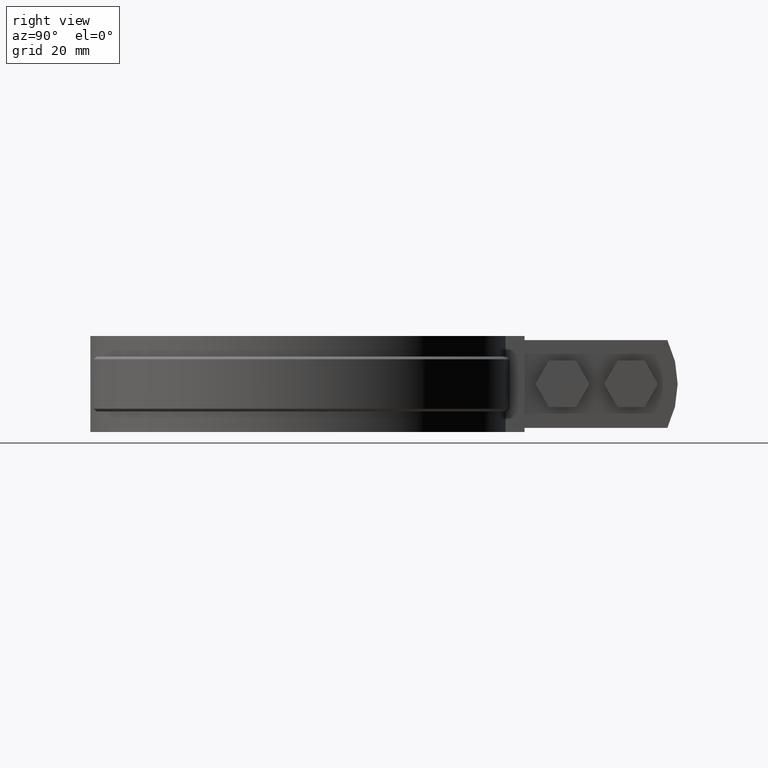
[diagram: clean part render]
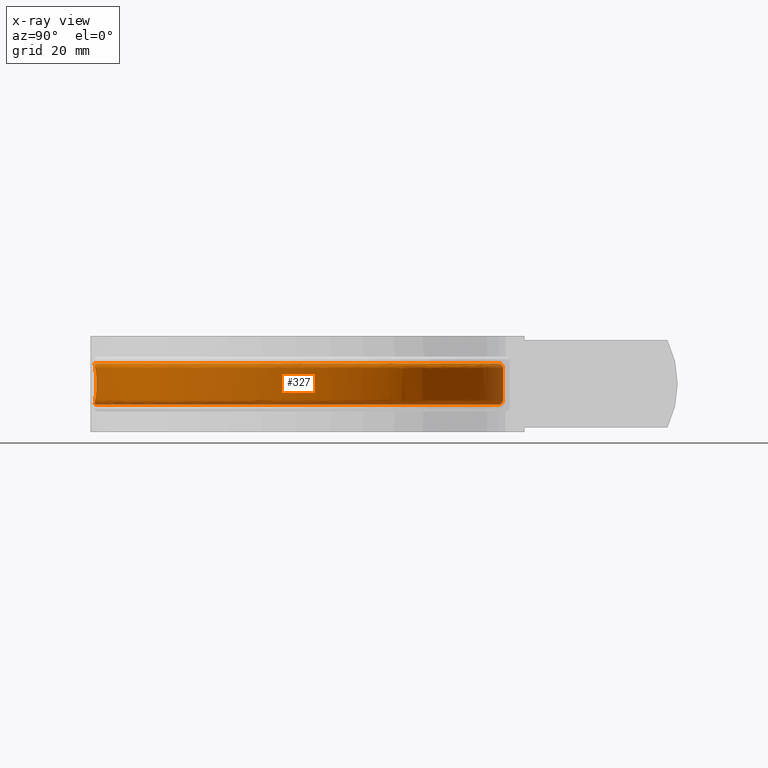
[diagram: x-ray — body ghosted, one internal face saturated and labeled with its STEP entity id]
A machine part, right view, then the same camera in x-ray: the body is ghosted and one INTERNAL B-rep face — a face not visible from any outside direction — is saturated and labeled: STEP entity #327.
In plain terms, the highlighted face is a freeform B-spline surface patch.
Its self-contained STEP definition (entity closure, byte-faithful):
#327 = ADVANCED_FACE( '', ( #494, #495 ), #496, .F. );
#494 = FACE_OUTER_BOUND( '', #826, .T. );
#495 = FACE_BOUND( '', #827, .T. );
#496 = B_SPLINE_SURFACE_WITH_KNOTS( '', 3, 3, ( ( #828, #829, #830, #831, #832, #833, #834, #835, #836, #837, #838, #839, #840, #841, #842, #843, #844 ), ( #845, #846, #847, #848, #849, #850, #851, #852, #853, #854, #855, #856, #857, #858, #859, #860, #861 ), ( #862, #863, #864, #865, #866, #867, #868, #869, #870, #871, #872, #873, #874, #875, #876, #877, #878 ), ( #879, #880, #881, #882, #883, #884, #885, #886, #887, #888, #889, #890, #891, #892, #893, #894, #895 ), ( #896, #897, #898, #899, #900, #901, #902, #903, #904, #905, #906, #907, #908, #909, #910, #911, #912 ), ( #913, #914, #915, #916, #917, #918, #919, #920, #921, #922, #923, #924, #925, #926, #927, #928, #929 ), ( #930, #931, #932, #933, #934, #935, #936, #937, #938, #939, #940, #941, #942, #943, #944, #945, #946 ), ( #947, #948, #949, #950, #951, #952, #953, #954, #955, #956, #957, #958, #959, #960, #961, #962, #963 ), ( #964, #965, #966, #967, #968, #969, #970, #971, #972, #973, #974, #975, #976, #977, #978, #979, #980 ), ( #981, #982, #983, #984, #985, #986, #987, #988, #989, #990, #991, #992, #993, #994, #995, #996, #997 ), ( #998, #999, #1000, #1001, #1002, #1003, #1004, #1005, #1006, #1007, #1008, #1009, #1010, #1011, #1012, #1013, #1014 ), ( #1015, #1016, #1017, #1018, #1019, #1020, #1021, #1022, #1023, #1024, #1025, #1026, #1027, #1028, #1029, #1030, #1031 ), ( #1032, #1033, #1034, #1035, #1036, #1037, #1038, #1039, #1040, #1041, #1042, #1043, #1044, #1045, #1046, #1047, #1048 ), ( #1049, #1050, #1051, #1052, #1053, #1054, #1055, #1056, #1057, #1058, #1059, #1060, #1061, #1062, #1063, #1064, #1065 ), ( #1066, #1067, #1068, #1069, #1070, #1071, #1072, #1073, #1074, #1075, #1076, #1077, #1078, #1079, #1080, #1081, #1082 ), ( #1083, #1084, #1085, #1086, #1087, #1088, #1089, #1090, #1091, #1092, #1093, #1094, #1095, #1096, #1097, #1098, #1099 ), ( #1100, #1101, #1102, #1103, #1104, #1105, #1106, #1107, #1108, #1109, #1110, #1111, #1112, #1113, #1114, #1115, #1116 ), ( #1117, #1118, #1119, #1120, #1121, #1122, #1123, #1124, #1125, #1126, #1127, #1128, #1129, #1130, #1131, #1132, #1133 ), ( #1134, #1135, #1136, #1137, #1138, #1139, #1140, #1141, #1142, #1143, #1144, #1145, #1146, #1147, #1148, #1149, #1150 ), ( #1151, #1152, #1153, #1154, #1155, #1156, #1157, #1158, #1159, #1160, #1161, #1162, #1163, #1164, #1165, #1166, #1167 ), ( #1168, #1169, #1170, #1171, #1172, #1173, #1174, #1175, #1176, #1177, #1178, #1179, #1180, #1181, #1182, #1183, #1184 ), ( #1185, #1186, #1187, #1188, #1189, #1190, #1191, #1192, #1193, #1194, #1195, #1196, #1197, #1198, #1199, #1200, #1201 ) ), .UNSPECIFIED., .F., .F., .F., ( 4, 3, 1, 1, 1, 3, 3, 1, 1, 1, 3, 4 ), ( 4, 1, 1, 1, 1, 1, 1, 1, 1, 1, 1, 1, 1, 1, 4 ), ( 0.000000000000000, 0.0909090909090909, 0.181818181818182, 0.272727272727273, 0.363636363636364, 0.454545454545455, 0.545454545454545, 0.636363636363636, 0.727272727272727, 0.818181818181818, 0.909090909090909, 1.00000000000000 ), ( 2.93927675343958, 4.00000000000000, 5.00000000000000, 6.00000000000000, 7.00000000000000, 8.00000000000000, 9.00000000000000, 10.0000000000000, 11.0000000000000, 12.0000000000000, 13.0000000000000, 14.0000000000000, 15.0000000000000, 16.0000000000000, 17.0000000000000 ), .UNSPECIFIED. );
#826 = EDGE_LOOP( '', ( #2374, #2375, #2376, #2377, #2378, #2379, #2380, #2381, #2382, #2383, #2384, #2385 ) );
#827 = EDGE_LOOP( '', ( #2386, #2387, #2388, #2389, #2390, #2391, #2392, #2393, #2394, #2395 ) );
#828 = CARTESIAN_POINT( '', ( -4.61408278539141, 70.8624171730569, -26.5000000000000 ) );
#829 = CARTESIAN_POINT( '', ( -15.6052744550126, 70.1472941383269, -26.5000000000000 ) );
#830 = CARTESIAN_POINT( '', ( -36.6617611339115, 63.6807156917407, -26.5000000000000 ) );
#831 = CARTESIAN_POINT( '', ( -60.4969619260765, 41.4439888512903, -26.5000000000000 ) );
#832 = CARTESIAN_POINT( '', ( -72.3802217986226, 11.7823910310343, -26.5000000000000 ) );
#833 = CARTESIAN_POINT( '', ( -70.5192778564034, -20.1169506966164, -26.5000000000000 ) );
#834 = CARTESIAN_POINT( '', ( -55.2698527498513, -48.1966426214465, -26.5000000000000 ) );
#835 = CARTESIAN_POINT( '', ( -29.5266031782373, -67.1256351168169, -26.5000000000000 ) );
#836 = CARTESIAN_POINT( '', ( 1.82261616750916, -73.3099539517817, -26.5000000000000 ) );
#837 = CARTESIAN_POINT( '', ( 32.8257890665060, -65.5754380062658, -26.5000000000000 ) );
#838 = CARTESIAN_POINT( '', ( 57.5965972162112, -45.3906027783521, -26.5000000000000 ) );
#839 = CARTESIAN_POINT( '', ( 71.4318266744617, -16.5877122940593, -26.5000000000000 ) );
#840 = CARTESIAN_POINT( '', ( 71.7052861561752, 15.3643128019334, -26.5000000000000 ) );
#841 = CARTESIAN_POINT( '', ( 58.3627979269206, 44.4001782011631, -26.5000000000000 ) );
#842 = CARTESIAN_POINT( '', ( 33.9460318401430, 65.0025488558879, -26.5000000000000 ) );
#843 = CARTESIAN_POINT( '', ( 13.3549246916386, 70.5185901661193, -26.5000000000000 ) );
#844 = CARTESIAN_POINT( '', ( 2.97799040788178, 70.9496140061351, -26.5000000000000 ) );
#845 = CARTESIAN_POINT( '', ( -4.58317847313393, 72.0000761796201, -25.3619288125423 ) );
#846 = CARTESIAN_POINT( '', ( -15.7546006070130, 71.2897577749478, -25.3619288125423 ) );
#847 = CARTESIAN_POINT( '', ( -37.1520462050843, 64.7507535133130, -25.3619288125423 ) );
#848 = CARTESIAN_POINT( '', ( -61.4020090744283, 42.1941559292932, -25.3619288125423 ) );
#849 = CARTESIAN_POINT( '', ( -73.5179681451019, 12.0766046186175, -25.3619288125423 ) );
#850 = CARTESIAN_POINT( '', ( -71.6742434158291, -20.3345508184463, -25.3619288125423 ) );
#851 = CARTESIAN_POINT( '', ( -56.2226090221052, -48.8847422760475, -25.3619288125423 ) );
#852 = CARTESIAN_POINT( '', ( -30.0962954527366, -68.1535897998528, -25.3619288125423 ) );
#853 = CARTESIAN_POINT( '', ( 1.74416083732159, -74.4825932048340, -25.3619288125423 ) );
#854 = CARTESIAN_POINT( '', ( 33.2534664050969, -66.6701216190303, -25.3619288125423 ) );
#855 = CARTESIAN_POINT( '', ( 58.4491977296035, -46.1994896762213, -25.3619288125423 ) );
#856 = CARTESIAN_POINT( '', ( 72.5475111608291, -16.9572300654301, -25.3619288125423 ) );
#857 = CARTESIAN_POINT( '', ( 72.8720854100233, 15.5043409607623, -25.3619288125423 ) );
#858 = CARTESIAN_POINT( '', ( 59.3597111215706, 45.0230947830519, -25.3619288125423 ) );
#859 = CARTESIAN_POINT( '', ( 34.5818006473789, 65.9903515204438, -25.3619288125423 ) );
#860 = CARTESIAN_POINT( '', ( 13.6743882856698, 71.6239562096893, -25.3619288125423 ) );
#861 = CARTESIAN_POINT( '', ( 3.12959689003598, 72.0775419747086, -25.3619288125423 ) );
#862 = CARTESIAN_POINT( '', ( -4.55227416087646, 73.1377351861834, -24.2238576250846 ) );
#863 = CARTESIAN_POINT( '', ( -15.9039267590134, 72.4322214115685, -24.2238576250846 ) );
#864 = CARTESIAN_POINT( '', ( -37.6423312762570, 65.8207913348853, -24.2238576250846 ) );
#865 = CARTESIAN_POINT( '', ( -62.3070562227800, 42.9443230072962, -24.2238576250846 ) );
#866 = CARTESIAN_POINT( '', ( -74.6557144915812, 12.3708182062007, -24.2238576250846 ) );
#867 = CARTESIAN_POINT( '', ( -72.8292089752548, -20.5521509402763, -24.2238576250846 ) );
#868 = CARTESIAN_POINT( '', ( -57.1753652943592, -49.5728419306484, -24.2238576250846 ) );
#869 = CARTESIAN_POINT( '', ( -30.6659877272358, -69.1815444828886, -24.2238576250846 ) );
#870 = CARTESIAN_POINT( '', ( 1.66570550713401, -75.6552324578863, -24.2238576250846 ) );
#871 = CARTESIAN_POINT( '', ( 33.6811437436878, -67.7648052317949, -24.2238576250846 ) );
#872 = CARTESIAN_POINT( '', ( 59.3017982429958, -47.0083765740904, -24.2238576250846 ) );
#873 = CARTESIAN_POINT( '', ( 73.6631956471966, -17.3267478368009, -24.2238576250846 ) );
#874 = CARTESIAN_POINT( '', ( 74.0388846638715, 15.6443691195911, -24.2238576250846 ) );
#875 = CARTESIAN_POINT( '', ( 60.3566243162205, 45.6460113649407, -24.2238576250846 ) );
#876 = CARTESIAN_POINT( '', ( 35.2175694546148, 66.9781541849998, -24.2238576250846 ) );
#877 = CARTESIAN_POINT( '', ( 13.9938518797011, 72.7293222532593, -24.2238576250846 ) );
#878 = CARTESIAN_POINT( '', ( 3.28120337219018, 73.2054699432820, -24.2238576250846 ) );
#879 = CARTESIAN_POINT( '', ( -4.52136984861898, 74.2753941927466, -23.0857864376269 ) );
#880 = CARTESIAN_POINT( '', ( -16.0532529110138, 73.5746850481893, -23.0857864376269 ) );
#881 = CARTESIAN_POINT( '', ( -38.1326163474298, 66.8908291564575, -23.0857864376269 ) );
#882 = CARTESIAN_POINT( '', ( -63.2121033711318, 43.6944900852991, -23.0857864376269 ) );
#883 = CARTESIAN_POINT( '', ( -75.7934608380605, 12.6650317937838, -23.0857864376269 ) );
#884 = CARTESIAN_POINT( '', ( -73.9841745346804, -20.7697510621062, -23.0857864376269 ) );
#885 = CARTESIAN_POINT( '', ( -58.1281215666131, -50.2609415852494, -23.0857864376269 ) );
#886 = CARTESIAN_POINT( '', ( -31.2356800017350, -70.2094991659245, -23.0857864376269 ) );
#887 = CARTESIAN_POINT( '', ( 1.58725017694644, -76.8278717109386, -23.0857864376269 ) );
#888 = CARTESIAN_POINT( '', ( 34.1088210822787, -68.8594888445595, -23.0857864376269 ) );
#889 = CARTESIAN_POINT( '', ( 60.1543987563881, -47.8172634719595, -23.0857864376269 ) );
#890 = CARTESIAN_POINT( '', ( 74.7788801335641, -17.6962656081718, -23.0857864376269 ) );
#891 = CARTESIAN_POINT( '', ( 75.2056839177196, 15.7843972784200, -23.0857864376269 ) );
#892 = CARTESIAN_POINT( '', ( 61.3535375108704, 46.2689279468294, -23.0857864376269 ) );
#893 = CARTESIAN_POINT( '', ( 35.8533382618507, 67.9659568495558, -23.0857864376269 ) );
#894 = CARTESIAN_POINT( '', ( 14.3133154737323, 73.8346882968293, -23.0857864376269 ) );
#895 = CARTESIAN_POINT( '', ( 3.43280985434438, 74.3333979118554, -23.0857864376269 ) );
#896 = CARTESIAN_POINT( '', ( -4.51885640188860, 74.3679199634714, -22.9932271442431 ) );
#897 = CARTESIAN_POINT( '', ( -16.0653976021941, 73.6676015793235, -22.9932271442431 ) );
#898 = CARTESIAN_POINT( '', ( -38.1724912166335, 66.9778552983634, -22.9932271442431 ) );
#899 = CARTESIAN_POINT( '', ( -63.2857108268460, 43.7555011498309, -22.9932271442431 ) );
#900 = CARTESIAN_POINT( '', ( -75.8859937121379, 12.6889601754797, -22.9932271442431 ) );
#901 = CARTESIAN_POINT( '', ( -74.0781078467977, -20.7874484730755, -22.9932271442431 ) );
#902 = CARTESIAN_POINT( '', ( -58.2056092038529, -50.3169047082152, -22.9932271442431 ) );
#903 = CARTESIAN_POINT( '', ( -31.2820130562530, -70.2931026875152, -22.9932271442431 ) );
#904 = CARTESIAN_POINT( '', ( 1.58086940744416, -76.9232424239948, -22.9932271442431 ) );
#905 = CARTESIAN_POINT( '', ( 34.1436040665880, -68.9485194278771, -22.9932271442431 ) );
#906 = CARTESIAN_POINT( '', ( 60.2237407289536, -47.8830502175685, -22.9932271442431 ) );
#907 = CARTESIAN_POINT( '', ( 74.8696187172621, -17.7263184767338, -22.9932271442431 ) );
#908 = CARTESIAN_POINT( '', ( 75.3005796638268, 15.7957857641122, -22.9932271442431 ) );
#909 = CARTESIAN_POINT( '', ( 61.4346164292006, 46.3195897325701, -22.9932271442431 ) );
#910 = CARTESIAN_POINT( '', ( 35.9050453186691, 68.0462948087639, -22.9932271442431 ) );
#911 = CARTESIAN_POINT( '', ( 14.3392974376474, 73.9245876819036, -22.9932271442431 ) );
#912 = CARTESIAN_POINT( '', ( 3.44514000470337, 74.4251322575709, -22.9932271442431 ) );
#913 = CARTESIAN_POINT( '', ( -4.51432461421931, 74.5347455189102, -22.7898759680773 ) );
#914 = CARTESIAN_POINT( '', ( -16.0872946891993, 73.8351316824989, -22.7898759680773 ) );
#915 = CARTESIAN_POINT( '', ( -38.2443862913878, 67.1347649284850, -22.7898759680773 ) );
#916 = CARTESIAN_POINT( '', ( -63.4184263350528, 43.8655051481623, -22.7898759680773 ) );
#917 = CARTESIAN_POINT( '', ( -76.0528320750436, 12.7321034590850, -22.7898759680773 ) );
#918 = CARTESIAN_POINT( '', ( -74.2474712235673, -20.8193572093299, -22.7898759680773 ) );
#919 = CARTESIAN_POINT( '', ( -58.3453207460634, -50.4178071811124, -22.7898759680773 ) );
#920 = CARTESIAN_POINT( '', ( -31.3655523501665, -70.4438412743624, -22.7898759680773 ) );
#921 = CARTESIAN_POINT( '', ( 1.56936477032515, -77.0951974593712, -22.7898759680773 ) );
#922 = CARTESIAN_POINT( '', ( 34.2063183853315, -69.1090431003269, -22.7898759680773 ) );
#923 = CARTESIAN_POINT( '', ( 60.3487654977054, -48.0016648509918, -22.7898759680773 ) );
#924 = CARTESIAN_POINT( '', ( 75.0332219437640, -17.7805043154585, -22.7898759680773 ) );
#925 = CARTESIAN_POINT( '', ( 75.4716783256278, 15.8163193996207, -22.7898759680773 ) );
#926 = CARTESIAN_POINT( '', ( 61.5808031129628, 46.4109338033032, -22.7898759680773 ) );
#927 = CARTESIAN_POINT( '', ( 35.9982740311268, 68.1911455304897, -22.7898759680773 ) );
#928 = CARTESIAN_POINT( '', ( 14.3861433653017, 74.0866778188585, -22.7898759680773 ) );
#929 = CARTESIAN_POINT( '', ( 3.46737147779644, 74.5905308601105, -22.7898759680773 ) );
#930 = CARTESIAN_POINT( '', ( -4.50927348117781, 74.7206893752281, -22.4418734431229 ) );
#931 = CARTESIAN_POINT( '', ( -16.1117011944806, 74.0218608281134, -22.4418734431229 ) );
#932 = CARTESIAN_POINT( '', ( -38.3245205814545, 67.3096564889625, -22.4418734431229 ) );
#933 = CARTESIAN_POINT( '', ( -63.5663511138689, 43.9881156655158, -22.4418734431229 ) );
#934 = CARTESIAN_POINT( '', ( -76.2387902065711, 12.7801909868422, -22.4418734431229 ) );
#935 = CARTESIAN_POINT( '', ( -74.4362437369434, -20.8549227043990, -22.4418734431229 ) );
#936 = CARTESIAN_POINT( '', ( -58.5010433082475, -50.5302731331854, -22.4418734431229 ) );
#937 = CARTESIAN_POINT( '', ( -31.4586652933452, -70.6118545865948, -22.4418734431229 ) );
#938 = CARTESIAN_POINT( '', ( 1.55654169543223, -77.2868586368632, -22.4418734431229 ) );
#939 = CARTESIAN_POINT( '', ( 34.2762197996732, -69.2879628743815, -22.4418734431229 ) );
#940 = CARTESIAN_POINT( '', ( 60.4881181740735, -48.1338727869788, -22.4418734431229 ) );
#941 = CARTESIAN_POINT( '', ( 75.2155741904674, -17.8408998812566, -22.4418734431229 ) );
#942 = CARTESIAN_POINT( '', ( 75.6623849886592, 15.8392062011100, -22.4418734431229 ) );
#943 = CARTESIAN_POINT( '', ( 61.7437428715003, 46.5127459550398, -22.4418734431230 ) );
#944 = CARTESIAN_POINT( '', ( 36.1021868055716, 68.3525962250027, -22.4418734431229 ) );
#945 = CARTESIAN_POINT( '', ( 14.4383578621629, 74.2673435751163, -22.4418734431229 ) );
#946 = CARTESIAN_POINT( '', ( 3.49215068999615, 74.7748842339382, -22.4418734431229 ) );
#947 = CARTESIAN_POINT( '', ( -4.50616300880884, 74.8351930365859, -22.0642686993349 ) );
#948 = CARTESIAN_POINT( '', ( -16.1267306462249, 74.1368480682324, -22.0642686993349 ) );
#949 = CARTESIAN_POINT( '', ( -38.3738670336290, 67.4173541801463, -22.0642686993349 ) );
#950 = CARTESIAN_POINT( '', ( -63.6574427428982, 44.0636188493045, -22.0642686993349 ) );
#951 = CARTESIAN_POINT( '', ( -76.3533026585596, 12.8098031402248, -22.0642686993349 ) );
#952 = CARTESIAN_POINT( '', ( -74.5524892767172, -20.8768238281256, -22.0642686993349 ) );
#953 = CARTESIAN_POINT( '', ( -58.5969367885657, -50.5995293245189, -22.0642686993349 ) );
#954 = CARTESIAN_POINT( '', ( -31.5160039606445, -70.7153166734227, -22.0642686993349 ) );
#955 = CARTESIAN_POINT( '', ( 1.54864528490176, -77.4048830072165, -22.0642686993349 ) );
#956 = CARTESIAN_POINT( '', ( 34.3192648780894, -69.3981411272383, -22.0642686993349 ) );
#957 = CARTESIAN_POINT( '', ( 60.5739311284787, -48.2152860319811, -22.0642686993349 ) );
#958 = CARTESIAN_POINT( '', ( 75.3278661495449, -17.8780912870422, -22.0642686993349 ) );
#959 = CARTESIAN_POINT( '', ( 75.7798215719099, 15.8532998238797, -22.0642686993349 ) );
#960 = CARTESIAN_POINT( '', ( 61.8440806793889, 46.5754415685191, -22.0642686993349 ) );
#961 = CARTESIAN_POINT( '', ( 36.1661759761276, 68.4520170717926, -22.0642686993349 ) );
#962 = CARTESIAN_POINT( '', ( 14.4705113905718, 74.3785969985052, -22.0642686993349 ) );
#963 = CARTESIAN_POINT( '', ( 3.50740965352747, 74.8884084810143, -22.0642686993349 ) );
#964 = CARTESIAN_POINT( '', ( -4.50546282348372, 74.8609684731900, -21.8024714832808 ) );
#965 = CARTESIAN_POINT( '', ( -16.1301138627616, 74.1627323612132, -21.8024714832808 ) );
#966 = CARTESIAN_POINT( '', ( -38.3849752054952, 67.4415975534900, -21.8024714832809 ) );
#967 = CARTESIAN_POINT( '', ( -63.6779479955807, 44.0806150527802, -21.8024714832808 ) );
#968 = CARTESIAN_POINT( '', ( -76.3790800739854, 12.8164690072650, -21.8024714832808 ) );
#969 = CARTESIAN_POINT( '', ( -74.5786568202298, -20.8817538977800, -21.8024714832809 ) );
#970 = CARTESIAN_POINT( '', ( -58.6185229657532, -50.6151192938525, -21.8024714832808 ) );
#971 = CARTESIAN_POINT( '', ( -31.5289112263722, -70.7386065877217, -21.8024714832809 ) );
#972 = CARTESIAN_POINT( '', ( 1.54686775720863, -77.4314509757836, -21.8024714832808 ) );
#973 = CARTESIAN_POINT( '', ( 34.3289545742675, -69.4229428893652, -21.8024714832809 ) );
#974 = CARTESIAN_POINT( '', ( 60.5932481209648, -48.2336126244272, -21.8024714832808 ) );
#975 = CARTESIAN_POINT( '', ( 75.3531437191705, -17.8864632876462, -21.8024714832808 ) );
#976 = CARTESIAN_POINT( '', ( 75.8062572261998, 15.8564723799003, -21.8024714832808 ) );
#977 = CARTESIAN_POINT( '', ( 61.8666673004241, 46.5895547138232, -21.8024714832809 ) );
#978 = CARTESIAN_POINT( '', ( 36.1805803086132, 68.4743972795795, -21.8024714832808 ) );
#979 = CARTESIAN_POINT( '', ( 14.4777493358328, 74.4036407877390, -21.8024714832808 ) );
#980 = CARTESIAN_POINT( '', ( 3.51084453449531, 74.9139634457974, -21.8024714832808 ) );
#981 = CARTESIAN_POINT( '', ( -4.50546282348372, 74.8609684731900, -21.6715728752538 ) );
#982 = CARTESIAN_POINT( '', ( -16.1301138627616, 74.1627323612132, -21.6715728752538 ) );
#983 = CARTESIAN_POINT( '', ( -38.3849752054952, 67.4415975534900, -21.6715728752538 ) );
#984 = CARTESIAN_POINT( '', ( -63.6779479955807, 44.0806150527802, -21.6715728752538 ) );
#985 = CARTESIAN_POINT( '', ( -76.3790800739854, 12.8164690072650, -21.6715728752538 ) );
#986 = CARTESIAN_POINT( '', ( -74.5786568202298, -20.8817538977800, -21.6715728752538 ) );
#987 = CARTESIAN_POINT( '', ( -58.6185229657532, -50.6151192938525, -21.6715728752538 ) );
#988 = CARTESIAN_POINT( '', ( -31.5289112263722, -70.7386065877217, -21.6715728752538 ) );
#989 = CARTESIAN_POINT( '', ( 1.54686775720863, -77.4314509757836, -21.6715728752538 ) );
#990 = CARTESIAN_POINT( '', ( 34.3289545742675, -69.4229428893652, -21.6715728752538 ) );
#991 = CARTESIAN_POINT( '', ( 60.5932481209648, -48.2336126244272, -21.6715728752538 ) );
#992 = CARTESIAN_POINT( '', ( 75.3531437191705, -17.8864632876462, -21.6715728752538 ) );
#993 = CARTESIAN_POINT( '', ( 75.8062572261998, 15.8564723799003, -21.6715728752538 ) );
#994 = CARTESIAN_POINT( '', ( 61.8666673004241, 46.5895547138232, -21.6715728752538 ) );
#995 = CARTESIAN_POINT( '', ( 36.1805803086132, 68.4743972795795, -21.6715728752538 ) );
#996 = CARTESIAN_POINT( '', ( 14.4777493358328, 74.4036407877390, -21.6715728752538 ) );
#997 = CARTESIAN_POINT( '', ( 3.51084453449531, 74.9139634457974, -21.6715728752538 ) );
#998 = CARTESIAN_POINT( '', ( -4.50546282348372, 74.8609684731900, -17.8905242917513 ) );
#999 = CARTESIAN_POINT( '', ( -16.1301138627616, 74.1627323612132, -17.8905242917513 ) );
#1000 = CARTESIAN_POINT( '', ( -38.3849752054952, 67.4415975534900, -17.8905242917513 ) );
#1001 = CARTESIAN_POINT( '', ( -63.6779479955807, 44.0806150527802, -17.8905242917513 ) );
#1002 = CARTESIAN_POINT( '', ( -76.3790800739854, 12.8164690072650, -17.8905242917513 ) );
#1003 = CARTESIAN_POINT( '', ( -74.5786568202298, -20.8817538977800, -17.8905242917513 ) );
#1004 = CARTESIAN_POINT( '', ( -58.6185229657532, -50.6151192938525, -17.8905242917513 ) );
#1005 = CARTESIAN_POINT( '', ( -31.5289112263722, -70.7386065877217, -17.8905242917513 ) );
#1006 = CARTESIAN_POINT( '', ( 1.54686775720863, -77.4314509757836, -17.8905242917513 ) );
#1007 = CARTESIAN_POINT( '', ( 34.3289545742675, -69.4229428893652, -17.8905242917513 ) );
#1008 = CARTESIAN_POINT( '', ( 60.5932481209648, -48.2336126244272, -17.8905242917513 ) );
#1009 = CARTESIAN_POINT( '', ( 75.3531437191705, -17.8864632876462, -17.8905242917513 ) );
#1010 = CARTESIAN_POINT( '', ( 75.8062572261997, 15.8564723799003, -17.8905242917512 ) );
#1011 = CARTESIAN_POINT( '', ( 61.8666673004241, 46.5895547138232, -17.8905242917513 ) );
#1012 = CARTESIAN_POINT( '', ( 36.1805803086132, 68.4743972795795, -17.8905242917513 ) );
#1013 = CARTESIAN_POINT( '', ( 14.4777493358328, 74.4036407877390, -17.8905242917513 ) );
#1014 = CARTESIAN_POINT( '', ( 3.51084453449531, 74.9139634457974, -17.8905242917513 ) );
#1015 = CARTESIAN_POINT( '', ( -4.50546282348372, 74.8609684731900, -14.1094757082487 ) );
#1016 = CARTESIAN_POINT( '', ( -16.1301138627616, 74.1627323612132, -14.1094757082487 ) );
#1017 = CARTESIAN_POINT( '', ( -38.3849752054952, 67.4415975534900, -14.1094757082487 ) );
#1018 = CARTESIAN_POINT( '', ( -63.6779479955807, 44.0806150527802, -14.1094757082487 ) );
#1019 = CARTESIAN_POINT( '', ( -76.3790800739854, 12.8164690072650, -14.1094757082487 ) );
#1020 = CARTESIAN_POINT( '', ( -74.5786568202298, -20.8817538977800, -14.1094757082487 ) );
#1021 = CARTESIAN_POINT( '', ( -58.6185229657532, -50.6151192938525, -14.1094757082487 ) );
#1022 = CARTESIAN_POINT( '', ( -31.5289112263722, -70.7386065877217, -14.1094757082487 ) );
#1023 = CARTESIAN_POINT( '', ( 1.54686775720863, -77.4314509757836, -14.1094757082487 ) );
#1024 = CARTESIAN_POINT( '', ( 34.3289545742675, -69.4229428893652, -14.1094757082487 ) );
#1025 = CARTESIAN_POINT( '', ( 60.5932481209648, -48.2336126244272, -14.1094757082487 ) );
#1026 = CARTESIAN_POINT( '', ( 75.3531437191705, -17.8864632876462, -14.1094757082487 ) );
#1027 = CARTESIAN_POINT( '', ( 75.8062572261997, 15.8564723799003, -14.1094757082487 ) );
#1028 = CARTESIAN_POINT( '', ( 61.8666673004241, 46.5895547138232, -14.1094757082487 ) );
#1029 = CARTESIAN_POINT( '', ( 36.1805803086132, 68.4743972795795, -14.1094757082487 ) );
#1030 = CARTESIAN_POINT( '', ( 14.4777493358328, 74.4036407877390, -14.1094757082487 ) );
#1031 = CARTESIAN_POINT( '', ( 3.51084453449531, 74.9139634457974, -14.1094757082487 ) );
#1032 = CARTESIAN_POINT( '', ( -4.50546282348372, 74.8609684731900, -10.3284271247462 ) );
#1033 = CARTESIAN_POINT( '', ( -16.1301138627616, 74.1627323612132, -10.3284271247462 ) );
#1034 = CARTESIAN_POINT( '', ( -38.3849752054952, 67.4415975534900, -10.3284271247462 ) );
#1035 = CARTESIAN_POINT( '', ( -63.6779479955807, 44.0806150527802, -10.3284271247462 ) );
#1036 = CARTESIAN_POINT( '', ( -76.3790800739854, 12.8164690072650, -10.3284271247462 ) );
#1037 = CARTESIAN_POINT( '', ( -74.5786568202298, -20.8817538977800, -10.3284271247462 ) );
#1038 = CARTESIAN_POINT( '', ( -58.6185229657532, -50.6151192938525, -10.3284271247462 ) );
#1039 = CARTESIAN_POINT( '', ( -31.5289112263722, -70.7386065877217, -10.3284271247462 ) );
#1040 = CARTESIAN_POINT( '', ( 1.54686775720863, -77.4314509757836, -10.3284271247462 ) );
#1041 = CARTESIAN_POINT( '', ( 34.3289545742675, -69.4229428893652, -10.3284271247462 ) );
#1042 = CARTESIAN_POINT( '', ( 60.5932481209648, -48.2336126244272, -10.3284271247462 ) );
#1043 = CARTESIAN_POINT( '', ( 75.3531437191705, -17.8864632876462, -10.3284271247462 ) );
#1044 = CARTESIAN_POINT( '', ( 75.8062572261997, 15.8564723799003, -10.3284271247462 ) );
#1045 = CARTESIAN_POINT( '', ( 61.8666673004241, 46.5895547138232, -10.3284271247462 ) );
#1046 = CARTESIAN_POINT( '', ( 36.1805803086132, 68.4743972795795, -10.3284271247462 ) );
#1047 = CARTESIAN_POINT( '', ( 14.4777493358328, 74.4036407877390, -10.3284271247462 ) );
#1048 = CARTESIAN_POINT( '', ( 3.51084453449531, 74.9139634457974, -10.3284271247462 ) );
#1049 = CARTESIAN_POINT( '', ( -4.50546282348372, 74.8609684731900, -10.1975285167192 ) );
#1050 = CARTESIAN_POINT( '', ( -16.1301138627616, 74.1627323612132, -10.1975285167192 ) );
#1051 = CARTESIAN_POINT( '', ( -38.3849752054952, 67.4415975534900, -10.1975285167192 ) );
#1052 = CARTESIAN_POINT( '', ( -63.6779479955807, 44.0806150527802, -10.1975285167192 ) );
#1053 = CARTESIAN_POINT( '', ( -76.3790800739854, 12.8164690072650, -10.1975285167192 ) );
#1054 = CARTESIAN_POINT( '', ( -74.5786568202298, -20.8817538977800, -10.1975285167192 ) );
#1055 = CARTESIAN_POINT( '', ( -58.6185229657532, -50.6151192938525, -10.1975285167192 ) );
#1056 = CARTESIAN_POINT( '', ( -31.5289112263722, -70.7386065877217, -10.1975285167192 ) );
#1057 = CARTESIAN_POINT( '', ( 1.54686775720863, -77.4314509757836, -10.1975285167192 ) );
#1058 = CARTESIAN_POINT( '', ( 34.3289545742675, -69.4229428893652, -10.1975285167192 ) );
#1059 = CARTESIAN_POINT( '', ( 60.5932481209648, -48.2336126244272, -10.1975285167192 ) );
#1060 = CARTESIAN_POINT( '', ( 75.3531437191705, -17.8864632876462, -10.1975285167192 ) );
#1061 = CARTESIAN_POINT( '', ( 75.8062572261997, 15.8564723799003, -10.1975285167192 ) );
#1062 = CARTESIAN_POINT( '', ( 61.8666673004241, 46.5895547138232, -10.1975285167192 ) );
#1063 = CARTESIAN_POINT( '', ( 36.1805803086132, 68.4743972795795, -10.1975285167192 ) );
#1064 = CARTESIAN_POINT( '', ( 14.4777493358328, 74.4036407877390, -10.1975285167192 ) );
#1065 = CARTESIAN_POINT( '', ( 3.51084453449531, 74.9139634457974, -10.1975285167192 ) );
#1066 = CARTESIAN_POINT( '', ( -4.50616300880884, 74.8351930365859, -9.93573130066511 ) );
#1067 = CARTESIAN_POINT( '', ( -16.1267306462249, 74.1368480682324, -9.93573130066511 ) );
#1068 = CARTESIAN_POINT( '', ( -38.3738670336291, 67.4173541801463, -9.93573130066511 ) );
#1069 = CARTESIAN_POINT( '', ( -63.6574427428982, 44.0636188493045, -9.93573130066510 ) );
#1070 = CARTESIAN_POINT( '', ( -76.3533026585596, 12.8098031402248, -9.93573130066510 ) );
#1071 = CARTESIAN_POINT( '', ( -74.5524892767171, -20.8768238281256, -9.93573130066511 ) );
#1072 = CARTESIAN_POINT( '', ( -58.5969367885657, -50.5995293245189, -9.93573130066510 ) );
#1073 = CARTESIAN_POINT( '', ( -31.5160039606445, -70.7153166734226, -9.93573130066511 ) );
#1074 = CARTESIAN_POINT( '', ( 1.54864528490176, -77.4048830072165, -9.93573130066511 ) );
#1075 = CARTESIAN_POINT( '', ( 34.3192648780894, -69.3981411272383, -9.93573130066511 ) );
#1076 = CARTESIAN_POINT( '', ( 60.5739311284787, -48.2152860319811, -9.93573130066511 ) );
#1077 = CARTESIAN_POINT( '', ( 75.3278661495449, -17.8780912870422, -9.93573130066510 ) );
#1078 = CARTESIAN_POINT( '', ( 75.7798215719099, 15.8532998238797, -9.93573130066510 ) );
#1079 = CARTESIAN_POINT( '', ( 61.8440806793889, 46.5754415685191, -9.93573130066511 ) );
#1080 = CARTESIAN_POINT( '', ( 36.1661759761276, 68.4520170717926, -9.93573130066511 ) );
#1081 = CARTESIAN_POINT( '', ( 14.4705113905718, 74.3785969985052, -9.93573130066511 ) );
#1082 = CARTESIAN_POINT( '', ( 3.50740965352747, 74.8884084810143, -9.93573130066511 ) );
#1083 = CARTESIAN_POINT( '', ( -4.50927348117781, 74.7206893752281, -9.55812655687708 ) );
#1084 = CARTESIAN_POINT( '', ( -16.1117011944806, 74.0218608281134, -9.55812655687708 ) );
#1085 = CARTESIAN_POINT( '', ( -38.3245205814545, 67.3096564889625, -9.55812655687708 ) );
#1086 = CARTESIAN_POINT( '', ( -63.5663511138689, 43.9881156655158, -9.55812655687708 ) );
#1087 = CARTESIAN_POINT( '', ( -76.2387902065711, 12.7801909868422, -9.55812655687708 ) );
#1088 = CARTESIAN_POINT( '', ( -74.4362437369434, -20.8549227043990, -9.55812655687709 ) );
#1089 = CARTESIAN_POINT( '', ( -58.5010433082476, -50.5302731331854, -9.55812655687708 ) );
#1090 = CARTESIAN_POINT( '', ( -31.4586652933452, -70.6118545865948, -9.55812655687709 ) );
#1091 = CARTESIAN_POINT( '', ( 1.55654169543223, -77.2868586368632, -9.55812655687708 ) );
#1092 = CARTESIAN_POINT( '', ( 34.2762197996733, -69.2879628743815, -9.55812655687708 ) );
#1093 = CARTESIAN_POINT( '', ( 60.4881181740735, -48.1338727869788, -9.55812655687708 ) );
#1094 = CARTESIAN_POINT( '', ( 75.2155741904675, -17.8408998812567, -9.55812655687708 ) );
#1095 = CARTESIAN_POINT( '', ( 75.6623849886592, 15.8392062011100, -9.55812655687708 ) );
#1096 = CARTESIAN_POINT( '', ( 61.7437428715003, 46.5127459550398, -9.55812655687709 ) );
#1097 = CARTESIAN_POINT( '', ( 36.1021868055715, 68.3525962250027, -9.55812655687709 ) );
#1098 = CARTESIAN_POINT( '', ( 14.4383578621629, 74.2673435751163, -9.55812655687708 ) );
#1099 = CARTESIAN_POINT( '', ( 3.49215068999615, 74.7748842339382, -9.55812655687708 ) );
#1100 = CARTESIAN_POINT( '', ( -4.51432461421930, 74.5347455189103, -9.21012403192274 ) );
#1101 = CARTESIAN_POINT( '', ( -16.0872946891993, 73.8351316824988, -9.21012403192274 ) );
#1102 = CARTESIAN_POINT( '', ( -38.2443862913878, 67.1347649284850, -9.21012403192274 ) );
#1103 = CARTESIAN_POINT( '', ( -63.4184263350528, 43.8655051481623, -9.21012403192274 ) );
#1104 = CARTESIAN_POINT( '', ( -76.0528320750436, 12.7321034590850, -9.21012403192274 ) );
#1105 = CARTESIAN_POINT( '', ( -74.2474712235672, -20.8193572093299, -9.21012403192274 ) );
#1106 = CARTESIAN_POINT( '', ( -58.3453207460634, -50.4178071811124, -9.21012403192274 ) );
#1107 = CARTESIAN_POINT( '', ( -31.3655523501665, -70.4438412743624, -9.21012403192274 ) );
#1108 = CARTESIAN_POINT( '', ( 1.56936477032515, -77.0951974593712, -9.21012403192274 ) );
#1109 = CARTESIAN_POINT( '', ( 34.2063183853315, -69.1090431003269, -9.21012403192274 ) );
#1110 = CARTESIAN_POINT( '', ( 60.3487654977054, -48.0016648509918, -9.21012403192274 ) );
#1111 = CARTESIAN_POINT( '', ( 75.0332219437640, -17.7805043154586, -9.21012403192274 ) );
#1112 = CARTESIAN_POINT( '', ( 75.4716783256278, 15.8163193996207, -9.21012403192273 ) );
#1113 = CARTESIAN_POINT( '', ( 61.5808031129628, 46.4109338033032, -9.21012403192274 ) );
#1114 = CARTESIAN_POINT( '', ( 35.9982740311268, 68.1911455304896, -9.21012403192274 ) );
#1115 = CARTESIAN_POINT( '', ( 14.3861433653017, 74.0866778188585, -9.21012403192274 ) );
#1116 = CARTESIAN_POINT( '', ( 3.46737147779644, 74.5905308601105, -9.21012403192274 ) );
#1117 = CARTESIAN_POINT( '', ( -4.51885640188860, 74.3679199634714, -9.00677285575691 ) );
#1118 = CARTESIAN_POINT( '', ( -16.0653976021941, 73.6676015793235, -9.00677285575691 ) );
#1119 = CARTESIAN_POINT( '', ( -38.1724912166335, 66.9778552983634, -9.00677285575691 ) );
#1120 = CARTESIAN_POINT( '', ( -63.2857108268460, 43.7555011498309, -9.00677285575691 ) );
#1121 = CARTESIAN_POINT( '', ( -75.8859937121379, 12.6889601754797, -9.00677285575691 ) );
#1122 = CARTESIAN_POINT( '', ( -74.0781078467977, -20.7874484730755, -9.00677285575691 ) );
#1123 = CARTESIAN_POINT( '', ( -58.2056092038529, -50.3169047082152, -9.00677285575691 ) );
#1124 = CARTESIAN_POINT( '', ( -31.2820130562530, -70.2931026875152, -9.00677285575691 ) );
#1125 = CARTESIAN_POINT( '', ( 1.58086940744416, -76.9232424239949, -9.00677285575691 ) );
#1126 = CARTESIAN_POINT( '', ( 34.1436040665880, -68.9485194278771, -9.00677285575691 ) );
#1127 = CARTESIAN_POINT( '', ( 60.2237407289536, -47.8830502175685, -9.00677285575691 ) );
#1128 = CARTESIAN_POINT( '', ( 74.8696187172621, -17.7263184767338, -9.00677285575691 ) );
#1129 = CARTESIAN_POINT( '', ( 75.3005796638268, 15.7957857641122, -9.00677285575691 ) );
#1130 = CARTESIAN_POINT( '', ( 61.4346164292006, 46.3195897325701, -9.00677285575692 ) );
#1131 = CARTESIAN_POINT( '', ( 35.9050453186691, 68.0462948087639, -9.00677285575691 ) );
#1132 = CARTESIAN_POINT( '', ( 14.3392974376474, 73.9245876819036, -9.00677285575691 ) );
#1133 = CARTESIAN_POINT( '', ( 3.44514000470337, 74.4251322575709, -9.00677285575691 ) );
#1134 = CARTESIAN_POINT( '', ( -4.52136984861898, 74.2753941927466, -8.91421356237311 ) );
#1135 = CARTESIAN_POINT( '', ( -16.0532529110138, 73.5746850481894, -8.91421356237311 ) );
#1136 = CARTESIAN_POINT( '', ( -38.1326163474298, 66.8908291564576, -8.91421356237312 ) );
#1137 = CARTESIAN_POINT( '', ( -63.2121033711318, 43.6944900852991, -8.91421356237311 ) );
#1138 = CARTESIAN_POINT( '', ( -75.7934608380606, 12.6650317937838, -8.91421356237311 ) );
#1139 = CARTESIAN_POINT( '', ( -73.9841745346804, -20.7697510621062, -8.91421356237312 ) );
#1140 = CARTESIAN_POINT( '', ( -58.1281215666131, -50.2609415852494, -8.91421356237311 ) );
#1141 = CARTESIAN_POINT( '', ( -31.2356800017350, -70.2094991659245, -8.91421356237312 ) );
#1142 = CARTESIAN_POINT( '', ( 1.58725017694644, -76.8278717109386, -8.91421356237311 ) );
#1143 = CARTESIAN_POINT( '', ( 34.1088210822787, -68.8594888445595, -8.91421356237312 ) );
#1144 = CARTESIAN_POINT( '', ( 60.1543987563881, -47.8172634719595, -8.91421356237312 ) );
#1145 = CARTESIAN_POINT( '', ( 74.7788801335641, -17.6962656081718, -8.91421356237311 ) );
#1146 = CARTESIAN_POINT( '', ( 75.2056839177196, 15.7843972784200, -8.91421356237311 ) );
#1147 = CARTESIAN_POINT( '', ( 61.3535375108704, 46.2689279468294, -8.91421356237312 ) );
#1148 = CARTESIAN_POINT( '', ( 35.8533382618507, 67.9659568495558, -8.91421356237311 ) );
#1149 = CARTESIAN_POINT( '', ( 14.3133154737323, 73.8346882968293, -8.91421356237311 ) );
#1150 = CARTESIAN_POINT( '', ( 3.43280985434438, 74.3333979118554, -8.91421356237311 ) );
#1151 = CARTESIAN_POINT( '', ( -4.55227416087646, 73.1377351861834, -7.77614237491541 ) );
#1152 = CARTESIAN_POINT( '', ( -15.9039267590134, 72.4322214115685, -7.77614237491541 ) );
#1153 = CARTESIAN_POINT( '', ( -37.6423312762570, 65.8207913348853, -7.77614237491541 ) );
#1154 = CARTESIAN_POINT( '', ( -62.3070562227800, 42.9443230072961, -7.77614237491541 ) );
#1155 = CARTESIAN_POINT( '', ( -74.6557144915812, 12.3708182062007, -7.77614237491541 ) );
#1156 = CARTESIAN_POINT( '', ( -72.8292089752548, -20.5521509402763, -7.77614237491541 ) );
#1157 = CARTESIAN_POINT( '', ( -57.1753652943592, -49.5728419306484, -7.77614237491541 ) );
#1158 = CARTESIAN_POINT( '', ( -30.6659877272358, -69.1815444828886, -7.77614237491541 ) );
#1159 = CARTESIAN_POINT( '', ( 1.66570550713401, -75.6552324578863, -7.77614237491541 ) );
#1160 = CARTESIAN_POINT( '', ( 33.6811437436878, -67.7648052317949, -7.77614237491541 ) );
#1161 = CARTESIAN_POINT( '', ( 59.3017982429958, -47.0083765740904, -7.77614237491541 ) );
#1162 = CARTESIAN_POINT( '', ( 73.6631956471966, -17.3267478368009, -7.77614237491541 ) );
#1163 = CARTESIAN_POINT( '', ( 74.0388846638714, 15.6443691195911, -7.77614237491540 ) );
#1164 = CARTESIAN_POINT( '', ( 60.3566243162205, 45.6460113649407, -7.77614237491541 ) );
#1165 = CARTESIAN_POINT( '', ( 35.2175694546148, 66.9781541849998, -7.77614237491541 ) );
#1166 = CARTESIAN_POINT( '', ( 13.9938518797011, 72.7293222532593, -7.77614237491541 ) );
#1167 = CARTESIAN_POINT( '', ( 3.28120337219018, 73.2054699432820, -7.77614237491541 ) );
#1168 = CARTESIAN_POINT( '', ( -4.58317847313393, 72.0000761796201, -6.63807118745771 ) );
#1169 = CARTESIAN_POINT( '', ( -15.7546006070130, 71.2897577749477, -6.63807118745771 ) );
#1170 = CARTESIAN_POINT( '', ( -37.1520462050843, 64.7507535133130, -6.63807118745771 ) );
#1171 = CARTESIAN_POINT( '', ( -61.4020090744283, 42.1941559292932, -6.63807118745771 ) );
#1172 = CARTESIAN_POINT( '', ( -73.5179681451019, 12.0766046186175, -6.63807118745771 ) );
#1173 = CARTESIAN_POINT( '', ( -71.6742434158291, -20.3345508184463, -6.63807118745771 ) );
#1174 = CARTESIAN_POINT( '', ( -56.2226090221052, -48.8847422760475, -6.63807118745771 ) );
#1175 = CARTESIAN_POINT( '', ( -30.0962954527365, -68.1535897998528, -6.63807118745771 ) );
#1176 = CARTESIAN_POINT( '', ( 1.74416083732159, -74.4825932048340, -6.63807118745771 ) );
#1177 = CARTESIAN_POINT( '', ( 33.2534664050969, -66.6701216190303, -6.63807118745771 ) );
#1178 = CARTESIAN_POINT( '', ( 58.4491977296035, -46.1994896762213, -6.63807118745771 ) );
#1179 = CARTESIAN_POINT( '', ( 72.5475111608291, -16.9572300654301, -6.63807118745771 ) );
#1180 = CARTESIAN_POINT( '', ( 72.8720854100233, 15.5043409607623, -6.63807118745770 ) );
#1181 = CARTESIAN_POINT( '', ( 59.3597111215706, 45.0230947830519, -6.63807118745771 ) );
#1182 = CARTESIAN_POINT( '', ( 34.5818006473789, 65.9903515204438, -6.63807118745771 ) );
#1183 = CARTESIAN_POINT( '', ( 13.6743882856698, 71.6239562096893, -6.63807118745771 ) );
#1184 = CARTESIAN_POINT( '', ( 3.12959689003598, 72.0775419747086, -6.63807118745771 ) );
#1185 = CARTESIAN_POINT( '', ( -4.61408278539141, 70.8624171730569, -5.50000000000001 ) );
#1186 = CARTESIAN_POINT( '', ( -15.6052744550126, 70.1472941383270, -5.50000000000001 ) );
#1187 = CARTESIAN_POINT( '', ( -36.6617611339115, 63.6807156917407, -5.50000000000001 ) );
#1188 = CARTESIAN_POINT( '', ( -60.4969619260765, 41.4439888512903, -5.50000000000001 ) );
#1189 = CARTESIAN_POINT( '', ( -72.3802217986227, 11.7823910310343, -5.50000000000001 ) );
#1190 = CARTESIAN_POINT( '', ( -70.5192778564034, -20.1169506966164, -5.50000000000001 ) );
#1191 = CARTESIAN_POINT( '', ( -55.2698527498513, -48.1966426214465, -5.50000000000001 ) );
#1192 = CARTESIAN_POINT( '', ( -29.5266031782373, -67.1256351168169, -5.50000000000001 ) );
#1193 = CARTESIAN_POINT( '', ( 1.82261616750916, -73.3099539517817, -5.50000000000001 ) );
#1194 = CARTESIAN_POINT( '', ( 32.8257890665060, -65.5754380062658, -5.50000000000001 ) );
#1195 = CARTESIAN_POINT( '', ( 57.5965972162112, -45.3906027783521, -5.50000000000001 ) );
#1196 = CARTESIAN_POINT( '', ( 71.4318266744617, -16.5877122940593, -5.50000000000001 ) );
#1197 = CARTESIAN_POINT( '', ( 71.7052861561752, 15.3643128019334, -5.50000000000001 ) );
#1198 = CARTESIAN_POINT( '', ( 58.3627979269206, 44.4001782011631, -5.50000000000001 ) );
#1199 = CARTESIAN_POINT( '', ( 33.9460318401430, 65.0025488558879, -5.50000000000001 ) );
#1200 = CARTESIAN_POINT( '', ( 13.3549246916386, 70.5185901661193, -5.50000000000001 ) );
#1201 = CARTESIAN_POINT( '', ( 2.97799040788178, 70.9496140061351, -5.50000000000001 ) );
#2374 = ORIENTED_EDGE( '', *, *, #4684, .T. );
#2375 = ORIENTED_EDGE( '', *, *, #4685, .T. );
#2376 = ORIENTED_EDGE( '', *, *, #4686, .T. );
#2377 = ORIENTED_EDGE( '', *, *, #4687, .T. );
#2378 = ORIENTED_EDGE( '', *, *, #4688, .T. );
#2379 = ORIENTED_EDGE( '', *, *, #4689, .T. );
#2380 = ORIENTED_EDGE( '', *, *, #4690, .T. );
#2381 = ORIENTED_EDGE( '', *, *, #4670, .T. );
#2382 = ORIENTED_EDGE( '', *, *, #4678, .T. );
#2383 = ORIENTED_EDGE( '', *, *, #4677, .T. );
#2384 = ORIENTED_EDGE( '', *, *, #4676, .T. );
#2385 = ORIENTED_EDGE( '', *, *, #4675, .T. );
#2386 = ORIENTED_EDGE( '', *, *, #4683, .T. );
#2387 = ORIENTED_EDGE( '', *, *, #4647, .T. );
#2388 = ORIENTED_EDGE( '', *, *, #4646, .T. );
#2389 = ORIENTED_EDGE( '', *, *, #4645, .T. );
#2390 = ORIENTED_EDGE( '', *, *, #4644, .T. );
#2391 = ORIENTED_EDGE( '', *, *, #4691, .T. );
#2392 = ORIENTED_EDGE( '', *, *, #4666, .T. );
#2393 = ORIENTED_EDGE( '', *, *, #4665, .T. );
#2394 = ORIENTED_EDGE( '', *, *, #4664, .T. );
#2395 = ORIENTED_EDGE( '', *, *, #4663, .T. );
#4644 = EDGE_CURVE( '', #5076, #5074, #5077, .T. );
#4645 = EDGE_CURVE( '', #5078, #5076, #5079, .T. );
#4646 = EDGE_CURVE( '', #5080, #5078, #5081, .T. );
#4647 = EDGE_CURVE( '', #5082, #5080, #5083, .T. );
#4663 = EDGE_CURVE( '', #5111, #5109, #5112, .T. );
#4664 = EDGE_CURVE( '', #5113, #5111, #5114, .T. );
#4665 = EDGE_CURVE( '', #5115, #5113, #5116, .T. );
#4666 = EDGE_CURVE( '', #5117, #5115, #5118, .T. );
#4670 = EDGE_CURVE( '', #5123, #5124, #5125, .T. );
#4675 = EDGE_CURVE( '', #5133, #5131, #5134, .T. );
#4676 = EDGE_CURVE( '', #5135, #5133, #5136, .T. );
#4677 = EDGE_CURVE( '', #5137, #5135, #5138, .T. );
#4678 = EDGE_CURVE( '', #5124, #5137, #5139, .T. );
#4683 = EDGE_CURVE( '', #5109, #5082, #5144, .T. );
#4684 = EDGE_CURVE( '', #5131, #5145, #5146, .T. );
#4685 = EDGE_CURVE( '', #5145, #5147, #5148, .T. );
#4686 = EDGE_CURVE( '', #5147, #5149, #5150, .T. );
#4687 = EDGE_CURVE( '', #5149, #5151, #5152, .T. );
#4688 = EDGE_CURVE( '', #5151, #5153, #5154, .T. );
#4689 = EDGE_CURVE( '', #5153, #5155, #5156, .T. );
#4690 = EDGE_CURVE( '', #5155, #5123, #5157, .T. );
#4691 = EDGE_CURVE( '', #5074, #5117, #5158, .T. );
#5074 = VERTEX_POINT( '', #5820 );
#5076 = VERTEX_POINT( '', #5823 );
#5077 = B_SPLINE_CURVE_WITH_KNOTS( '', 3, ( #5824, #5825, #5826, #5827, #5828, #5829, #5830, #5831, #5832, #5833 ), .UNSPECIFIED., .F., .F., ( 4, 2, 2, 2, 4 ), ( 0.000000000000000, 0.00109227146752521, 0.00218454293505043, 0.00327681440257564, 0.00436908587010085 ), .UNSPECIFIED. );
#5078 = VERTEX_POINT( '', #5834 );
#5079 = B_SPLINE_CURVE_WITH_KNOTS( '', 3, ( #5835, #5836, #5837, #5838, #5839, #5840, #5841, #5842, #5843, #5844, #5845, #5846, #5847, #5848 ), .UNSPECIFIED., .F., .F., ( 4, 2, 2, 2, 2, 2, 4 ), ( 1.39857877853494E-017, 0.00165540790206193, 0.00248311185309289, 0.00331081580412385, 0.00413851975515481, 0.00496622370618577, 0.00662163160824769 ), .UNSPECIFIED. );
#5080 = VERTEX_POINT( '', #5849 );
#5081 = B_SPLINE_CURVE_WITH_KNOTS( '', 3, ( #5850, #5851, #5852, #5853, #5854, #5855, #5856, #5857, #5858, #5859, #5860, #5861, #5862, #5863 ), .UNSPECIFIED., .F., .F., ( 4, 2, 2, 2, 2, 2, 4 ), ( 0.000000000000000, 0.00165610983830216, 0.00248416475745324, 0.00331221967660432, 0.00414027459575539, 0.00496832951490647, 0.00662443935320862 ), .UNSPECIFIED. );
#5082 = VERTEX_POINT( '', #5864 );
#5083 = B_SPLINE_CURVE_WITH_KNOTS( '', 3, ( #5865, #5866, #5867, #5868, #5869, #5870, #5871, #5872, #5873, #5874 ), .UNSPECIFIED., .F., .F., ( 4, 2, 2, 2, 4 ), ( 6.93889390390723E-018, 0.00109232621244541, 0.00218465242489082, 0.00327697863733622, 0.00436930484978162 ), .UNSPECIFIED. );
#5109 = VERTEX_POINT( '', #6136 );
#5111 = VERTEX_POINT( '', #6139 );
#5112 = B_SPLINE_CURVE_WITH_KNOTS( '', 3, ( #6140, #6141, #6142, #6143, #6144, #6145, #6146, #6147, #6148, #6149 ), .UNSPECIFIED., .F., .F., ( 4, 2, 2, 2, 4 ), ( 0.000000000000000, 0.00109225790506546, 0.00218451581013093, 0.00327677371519639, 0.00436903162026185 ), .UNSPECIFIED. );
#5113 = VERTEX_POINT( '', #6150 );
#5114 = B_SPLINE_CURVE_WITH_KNOTS( '', 3, ( #6151, #6152, #6153, #6154, #6155, #6156, #6157, #6158, #6159, #6160, #6161, #6162, #6163, #6164 ), .UNSPECIFIED., .F., .F., ( 4, 2, 2, 2, 2, 2, 4 ), ( 7.15244812269100E-018, 0.00165544484279227, 0.00248316726418841, 0.00331088968558454, 0.00413861210698068, 0.00496633452837682, 0.00662177937116910 ), .UNSPECIFIED. );
#5115 = VERTEX_POINT( '', #6165 );
#5116 = B_SPLINE_CURVE_WITH_KNOTS( '', 3, ( #6166, #6167, #6168, #6169, #6170, #6171, #6172, #6173, #6174, #6175, #6176, #6177, #6178, #6179 ), .UNSPECIFIED., .F., .F., ( 4, 2, 2, 2, 2, 2, 4 ), ( 0.000000000000000, 0.00165613066684568, 0.00248419600026852, 0.00331226133369136, 0.00414032666711420, 0.00496839200053703, 0.00662452266738271 ), .UNSPECIFIED. );
#5117 = VERTEX_POINT( '', #6180 );
#5118 = B_SPLINE_CURVE_WITH_KNOTS( '', 3, ( #6181, #6182, #6183, #6184, #6185, #6186, #6187, #6188, #6189, #6190 ), .UNSPECIFIED., .F., .F., ( 4, 2, 2, 2, 4 ), ( 3.46944695195361E-018, 0.00109233382343824, 0.00218466764687647, 0.00327700147031471, 0.00436933529375294 ), .UNSPECIFIED. );
#5123 = VERTEX_POINT( '', #6248 );
#5124 = VERTEX_POINT( '', #6249 );
#5125 = B_SPLINE_CURVE_WITH_KNOTS( '', 3, ( #6250, #6251, #6252, #6253, #6254, #6255, #6256, #6257 ), .UNSPECIFIED., .F., .F., ( 4, 2, 2, 4 ), ( 1.73472347597681E-018, 0.000374260451726746, 0.000748520903453490, 0.00149704180690696 ), .UNSPECIFIED. );
#5131 = VERTEX_POINT( '', #6265 );
#5133 = VERTEX_POINT( '', #6268 );
#5134 = B_SPLINE_CURVE_WITH_KNOTS( '', 3, ( #6269, #6270, #6271, #6272, #6273, #6274, #6275, #6276 ), .UNSPECIFIED., .F., .F., ( 4, 2, 2, 4 ), ( 2.32252200787276E-017, 0.000749260102089287, 0.00112389015313392, 0.00149852020417855 ), .UNSPECIFIED. );
#5135 = VERTEX_POINT( '', #6277 );
#5136 = B_SPLINE_CURVE_WITH_KNOTS( '', 3, ( #6278, #6279, #6280, #6281, #6282, #6283, #6284, #6285, #6286, #6287 ), .UNSPECIFIED., .F., .F., ( 4, 2, 2, 2, 4 ), ( 0.000000000000000, 0.000430831945068080, 0.000861663890136161, 0.00129249583520424, 0.00172332778027232 ), .UNSPECIFIED. );
#5137 = VERTEX_POINT( '', #6288 );
#5138 = B_SPLINE_CURVE_WITH_KNOTS( '', 3, ( #6289, #6290, #6291, #6292 ), .UNSPECIFIED., .F., .F., ( 4, 4 ), ( 0.000000000000000, 0.0113431327256776 ), .UNSPECIFIED. );
#5139 = B_SPLINE_CURVE_WITH_KNOTS( '', 3, ( #6293, #6294, #6295, #6296, #6297, #6298, #6299, #6300, #6301, #6302 ), .UNSPECIFIED., .F., .F., ( 4, 2, 2, 2, 4 ), ( 8.67361737988404E-018, 0.000430537327437777, 0.000861074654875546, 0.00129161198231332, 0.00172214930975108 ), .UNSPECIFIED. );
#5144 = B_SPLINE_CURVE_WITH_KNOTS( '', 3, ( #6437, #6438, #6439, #6440, #6441 ), .UNSPECIFIED., .F., .F., ( 4, 1, 4 ), ( 0.223631453326228, 0.230131424499624, 0.239702132435537 ), .UNSPECIFIED. );
#5145 = VERTEX_POINT( '', #6442 );
#5146 = B_SPLINE_CURVE_WITH_KNOTS( '', 3, ( #6443, #6444, #6445, #6446, #6447, #6448, #6449, #6450, #6451, #6452, #6453, #6454, #6455, #6456, #6457, #6458, #6459, #6460, #6461, #6462, #6463, #6464, #6465, #6466, #6467, #6468, #6469, #6470, #6471, #6472, #6473, #6474, #6475, #6476, #6477, #6478, #6479, #6480, #6481, #6482, #6483, #6484, #6485, #6486, #6487, #6488, #6489, #6490, #6491, #6492, #6493, #6494, #6495, #6496, #6497, #6498, #6499, #6500, #6501, #6502, #6503, #6504, #6505, #6506, #6507, #6508, #6509, #6510, #6511, #6512, #6513, #6514, #6515, #6516, #6517, #6518, #6519, #6520, #6521, #6522, #6523, #6524, #6525, #6526, #6527, #6528, #6529, #6530, #6531, #6532, #6533, #6534, #6535, #6536, #6537, #6538, #6539, #6540, #6541, #6542, #6543, #6544, #6545, #6546, #6547, #6548, #6549, #6550, #6551, #6552, #6553, #6554, #6555, #6556, #6557, #6558, #6559, #6560, #6561, #6562, #6563, #6564, #6565, #6566, #6567, #6568, #6569, #6570, #6571, #6572, #6573, #6574, #6575, #6576 ), .UNSPECIFIED., .F., .F., ( 4, 2, 2, 2, 2, 2, 2, 2, 2, 2, 2, 2, 2, 2, 2, 2, 2, 2, 2, 2, 2, 2, 2, 2, 2, 2, 2, 2, 2, 2, 2, 2, 2, 2, 2, 2, 2, 2, 2, 2, 2, 2, 2, 2, 2, 2, 2, 2, 2, 2, 2, 2, 2, 2, 2, 2, 2, 2, 2, 2, 2, 2, 2, 2, 2, 2, 4 ), ( 1.73472347597681E-018, 0.00705430745483289, 0.0141086149096658, 0.0176357686370822, 0.0211629223644987, 0.0282172298193315, 0.0423258447289972, 0.0458529984564136, 0.0493801521838301, 0.0564344596386629, 0.0705430745483285, 0.0846516894579942, 0.0917059969128270, 0.0952331506402434, 0.0987603043676598, 0.112868919277326, 0.119923226732158, 0.123450380459575, 0.126977534186991, 0.141086149096657, 0.144613302824073, 0.148140456551490, 0.155194764006322, 0.169303378915988, 0.172830532643404, 0.176357686370821, 0.183411993825654, 0.190466301280486, 0.193993455007903, 0.197520608735319, 0.211629223644985, 0.218683531099817, 0.222210684827234, 0.225737838554650, 0.239846453464316, 0.246900760919148, 0.253955068373981, 0.268063683283647, 0.271590837011063, 0.275117990738479, 0.282172298193312, 0.289226605648145, 0.296280913102977, 0.299808066830394, 0.303335220557810, 0.310389528012643, 0.317443835467475, 0.320970989194892, 0.324498142922308, 0.338606757831973, 0.345661065286806, 0.349188219014222, 0.352715372741639, 0.366823987651304, 0.370351141378720, 0.373878295106137, 0.380932602560970, 0.387986910015802, 0.395041217470635, 0.398568371198051, 0.402095524925467, 0.409149832380300, 0.423258447289965, 0.437367062199631, 0.444421369654463, 0.447948523381880, 0.451475677109296 ), .UNSPECIFIED. );
#5147 = VERTEX_POINT( '', #6577 );
#5148 = B_SPLINE_CURVE_WITH_KNOTS( '', 3, ( #6578, #6579, #6580, #6581, #6582, #6583, #6584, #6585 ), .UNSPECIFIED., .F., .F., ( 4, 2, 2, 4 ), ( 3.46944695195361E-018, 0.000374271540583493, 0.000748543081166982, 0.00149708616233395 ), .UNSPECIFIED. );
#5149 = VERTEX_POINT( '', #6586 );
#5150 = B_SPLINE_CURVE_WITH_KNOTS( '', 3, ( #6587, #6588, #6589, #6590, #6591, #6592, #6593, #6594, #6595, #6596 ), .UNSPECIFIED., .F., .F., ( 4, 2, 2, 2, 4 ), ( 0.000000000000000, 0.000430487889146792, 0.000860975778293583, 0.00129146366744038, 0.00172195155658717 ), .UNSPECIFIED. );
#5151 = VERTEX_POINT( '', #6597 );
#5152 = B_SPLINE_CURVE_WITH_KNOTS( '', 3, ( #6598, #6599, #6600, #6601 ), .UNSPECIFIED., .F., .F., ( 4, 4 ), ( 0.000000000000000, 0.0113431328693538 ), .UNSPECIFIED. );
#5153 = VERTEX_POINT( '', #6602 );
#5154 = B_SPLINE_CURVE_WITH_KNOTS( '', 3, ( #6603, #6604, #6605, #6606, #6607, #6608, #6609, #6610, #6611, #6612 ), .UNSPECIFIED., .F., .F., ( 4, 2, 2, 2, 4 ), ( 0.000000000000000, 0.000430531208512772, 0.000861062417025544, 0.00129159362553832, 0.00172212483405109 ), .UNSPECIFIED. );
#5155 = VERTEX_POINT( '', #6613 );
#5156 = B_SPLINE_CURVE_WITH_KNOTS( '', 3, ( #6614, #6615, #6616, #6617, #6618, #6619, #6620, #6621 ), .UNSPECIFIED., .F., .F., ( 4, 2, 2, 4 ), ( 0.000000000000000, 0.000749783305709883, 0.00112467495856482, 0.00149956661141976 ), .UNSPECIFIED. );
#5157 = B_SPLINE_CURVE_WITH_KNOTS( '', 3, ( #6622, #6623, #6624, #6625, #6626, #6627, #6628, #6629, #6630, #6631, #6632, #6633, #6634, #6635, #6636, #6637, #6638, #6639, #6640, #6641, #6642, #6643, #6644, #6645, #6646, #6647, #6648, #6649, #6650, #6651, #6652, #6653, #6654, #6655, #6656, #6657, #6658, #6659, #6660, #6661, #6662, #6663, #6664, #6665, #6666, #6667, #6668, #6669, #6670, #6671, #6672, #6673, #6674, #6675, #6676, #6677, #6678, #6679, #6680, #6681, #6682, #6683, #6684, #6685, #6686, #6687, #6688, #6689, #6690, #6691, #6692, #6693, #6694, #6695, #6696, #6697, #6698, #6699, #6700, #6701, #6702, #6703, #6704, #6705, #6706, #6707, #6708, #6709, #6710, #6711, #6712, #6713, #6714, #6715, #6716, #6717, #6718, #6719, #6720, #6721, #6722, #6723, #6724, #6725, #6726, #6727, #6728, #6729, #6730, #6731, #6732, #6733, #6734, #6735, #6736, #6737, #6738, #6739, #6740, #6741, #6742, #6743, #6744, #6745, #6746, #6747, #6748, #6749, #6750, #6751, #6752, #6753, #6754, #6755, #6756, #6757, #6758, #6759 ), .UNSPECIFIED., .F., .F., ( 4, 2, 2, 2, 2, 2, 2, 2, 2, 2, 2, 2, 2, 2, 2, 2, 2, 2, 2, 2, 2, 2, 2, 2, 2, 2, 2, 2, 2, 2, 2, 2, 2, 2, 2, 2, 2, 2, 2, 2, 2, 2, 2, 2, 2, 2, 2, 2, 2, 2, 2, 2, 2, 2, 2, 2, 2, 2, 2, 2, 2, 2, 2, 2, 2, 2, 2, 2, 4 ), ( 5.20417042793042E-018, 0.00705430651106769, 0.0141086130221354, 0.0176357662776692, 0.0211629195332030, 0.0282172260442707, 0.0423258390664061, 0.0458529923219399, 0.0493801455774738, 0.0564344520885415, 0.0634887585996091, 0.0705430651106768, 0.0846516781328122, 0.0917059846438799, 0.0952331378994137, 0.0987602911549475, 0.112868904177083, 0.119923210688151, 0.123450363943684, 0.126977517199218, 0.141086130221354, 0.144613283476887, 0.148140436732421, 0.155194743243489, 0.162249049754556, 0.169303356265624, 0.172830509521158, 0.176357662776692, 0.183411969287760, 0.190466275798827, 0.193993429054361, 0.197520582309895, 0.211629195332030, 0.218683501843098, 0.222210655098632, 0.225737808354166, 0.239846421376301, 0.246900727887369, 0.253955034398437, 0.261009340909505, 0.268063647420573, 0.271590800676106, 0.275117953931640, 0.282172260442708, 0.296280873464844, 0.299808026720377, 0.303335179975911, 0.310389486486979, 0.317443792998047, 0.320970946253581, 0.324498099509115, 0.338606712531250, 0.345661019042318, 0.349188172297852, 0.352715325553386, 0.359769632064454, 0.366823938575521, 0.370351091831055, 0.373878245086589, 0.380932551597657, 0.395041164619793, 0.398568317875326, 0.402095471130860, 0.409149777641928, 0.423258390664064, 0.437367003686199, 0.444421310197267, 0.447948463452801, 0.451475616708335 ), .UNSPECIFIED. );
#5158 = B_SPLINE_CURVE_WITH_KNOTS( '', 3, ( #6760, #6761, #6762, #6763, #6764 ), .UNSPECIFIED., .F., .F., ( 4, 1, 4 ), ( 0.221678948861726, 0.231231235859138, 0.237718696404267 ), .UNSPECIFIED. );
#5820 = CARTESIAN_POINT( '', ( -8.00000000000001, -74.0571698867520, -9.00000000000001 ) );
#5823 = CARTESIAN_POINT( '', ( -12.1039407068029, -74.0057095685040, -10.3292266246087 ) );
#5824 = CARTESIAN_POINT( '', ( -12.1039407068029, -74.0057095685040, -10.3292266246087 ) );
#5825 = CARTESIAN_POINT( '', ( -11.8075610770637, -74.0542778413585, -10.1147365812520 ) );
#5826 = CARTESIAN_POINT( '', ( -11.4966653921385, -74.0695371498762, -9.92496023078624 ) );
#5827 = CARTESIAN_POINT( '', ( -10.8470018288416, -74.0691355293366, -9.59473984535521 ) );
#5828 = CARTESIAN_POINT( '', ( -10.5057110933983, -74.0528319829388, -9.45364600164975 ) );
#5829 = CARTESIAN_POINT( '', ( -9.81098191100241, -74.0199673671921, -9.22846522025340 ) );
#5830 = CARTESIAN_POINT( '', ( -9.45702140561249, -74.0035518981939, -9.14357059808179 ) );
#5831 = CARTESIAN_POINT( '', ( -8.73518672445508, -74.0016726411556, -9.02912946612216 ) );
#5832 = CARTESIAN_POINT( '', ( -8.36630789278871, -74.0173624674284, -9.00000000000000 ) );
#5833 = CARTESIAN_POINT( '', ( -8.00000000000001, -74.0571698867520, -9.00000000000000 ) );
#5834 = CARTESIAN_POINT( '', ( -15.0000000000001, -73.4730172923338, -16.0000000000000 ) );
#5835 = CARTESIAN_POINT( '', ( -15.0000000000000, -73.4730172923338, -16.0000000000000 ) );
#5836 = CARTESIAN_POINT( '', ( -15.0000000000000, -73.4730172923338, -15.4421074601049 ) );
#5837 = CARTESIAN_POINT( '', ( -14.9342435552733, -73.4865291672453, -14.8942158372294 ) );
#5838 = CARTESIAN_POINT( '', ( -14.7392217053593, -73.5258048979399, -14.0870144065794 ) );
#5839 = CARTESIAN_POINT( '', ( -14.6574497306220, -73.5421866348160, -13.8195366389650 ) );
#5840 = CARTESIAN_POINT( '', ( -14.4652695682481, -73.5802356567456, -13.3025295563324 ) );
#5841 = CARTESIAN_POINT( '', ( -14.3545997305498, -73.6019566714678, -13.0514135998568 ) );
#5842 = CARTESIAN_POINT( '', ( -14.1046358650161, -73.6502860570760, -12.5636472168631 ) );
#5843 = CARTESIAN_POINT( '', ( -13.9653423982442, -73.6768953746189, -12.3269966052227 ) );
#5844 = CARTESIAN_POINT( '', ( -13.6574430802310, -73.7346301112184, -11.8684625548979 ) );
#5845 = CARTESIAN_POINT( '', ( -13.4892772139617, -73.7656625233980, -11.6476498019866 ) );
#5846 = CARTESIAN_POINT( '', ( -12.9536249530519, -73.8623753583033, -11.0238502699409 ) );
#5847 = CARTESIAN_POINT( '', ( -12.5518155474148, -73.9323154979243, -10.6533538059058 ) );
#5848 = CARTESIAN_POINT( '', ( -12.1039407068029, -74.0057095685040, -10.3292266246087 ) );
#5849 = CARTESIAN_POINT( '', ( -12.1041948193534, -74.0056679261703, -21.6705894653724 ) );
#5850 = CARTESIAN_POINT( '', ( -12.1041948193534, -74.0056679261703, -21.6705894653724 ) );
#5851 = CARTESIAN_POINT( '', ( -12.5520649839037, -73.9322730548582, -21.3464350859530 ) );
#5852 = CARTESIAN_POINT( '', ( -12.9548340666447, -73.8621696271016, -20.9752103319584 ) );
#5853 = CARTESIAN_POINT( '', ( -13.4924786455936, -73.7650781449608, -20.3483850963894 ) );
#5854 = CARTESIAN_POINT( '', ( -13.6608768096507, -73.7339916371375, -20.1267434478221 ) );
#5855 = CARTESIAN_POINT( '', ( -13.9670084242362, -73.6765774941407, -19.6701972975956 ) );
#5856 = CARTESIAN_POINT( '', ( -14.1058466309389, -73.6500537218302, -19.4341801449061 ) );
#5857 = CARTESIAN_POINT( '', ( -14.3554172925513, -73.6017968242914, -18.9467995157043 ) );
#5858 = CARTESIAN_POINT( '', ( -14.4661514781671, -73.5800624549667, -18.6954370803081 ) );
#5859 = CARTESIAN_POINT( '', ( -14.6586622088298, -73.5419451612675, -18.1768586497990 ) );
#5860 = CARTESIAN_POINT( '', ( -14.7401567995381, -73.5256171409643, -17.9095586930204 ) );
#5861 = CARTESIAN_POINT( '', ( -14.9342425077133, -73.4865282440725, -17.1048951000066 ) );
#5862 = CARTESIAN_POINT( '', ( -15.0000000000000, -73.4730172923338, -16.5579058049531 ) );
#5863 = CARTESIAN_POINT( '', ( -15.0000000000000, -73.4730172923338, -16.0000000000000 ) );
#5864 = CARTESIAN_POINT( '', ( -8.00000000000002, -74.0571698867520, -23.0000000000000 ) );
#5865 = CARTESIAN_POINT( '', ( -8.00000000000002, -74.0571698867520, -23.0000000000000 ) );
#5866 = CARTESIAN_POINT( '', ( -8.36691239254552, -74.0172967752176, -23.0000000000000 ) );
#5867 = CARTESIAN_POINT( '', ( -8.73029659565692, -74.0018314498991, -22.9713227539121 ) );
#5868 = CARTESIAN_POINT( '', ( -9.44989799306649, -74.0033646508617, -22.8578764837625 ) );
#5869 = CARTESIAN_POINT( '', ( -9.80855978018094, -74.0198536514224, -22.7722291668370 ) );
#5870 = CARTESIAN_POINT( '', ( -10.5050011045753, -74.0527975355788, -22.5466744101660 ) );
#5871 = CARTESIAN_POINT( '', ( -10.8415073955512, -74.0689608005708, -22.4077075965123 ) );
#5872 = CARTESIAN_POINT( '', ( -11.4917015356936, -74.0697026764903, -22.0779027062803 ) );
#5873 = CARTESIAN_POINT( '', ( -11.8076252466832, -74.0542683629579, -21.8852372213357 ) );
#5874 = CARTESIAN_POINT( '', ( -12.1041948193534, -74.0056679261703, -21.6705894653724 ) );
#6136 = CARTESIAN_POINT( '', ( 8.00000000000000, -74.0593005389373, -23.0000000000000 ) );
#6139 = CARTESIAN_POINT( '', ( 12.1038917688370, -74.0070834679522, -21.6708087914928 ) );
#6140 = CARTESIAN_POINT( '', ( 12.1038917688370, -74.0070834679522, -21.6708087914928 ) );
#6141 = CARTESIAN_POINT( '', ( 11.8075223543214, -74.0557297806539, -21.8852875449627 ) );
#6142 = CARTESIAN_POINT( '', ( 11.4966323300223, -74.0710637116866, -22.0750585262089 ) );
#6143 = CARTESIAN_POINT( '', ( 10.8469752972383, -74.0708160457708, -22.4052716886276 ) );
#6144 = CARTESIAN_POINT( '', ( 10.5056851481352, -74.0545888060572, -22.5463638671196 ) );
#6145 = CARTESIAN_POINT( '', ( 9.81095722763464, -74.0218636118116, -22.7715413209987 ) );
#6146 = CARTESIAN_POINT( '', ( 9.45699764711488, -74.0055116657188, -22.8564342252584 ) );
#6147 = CARTESIAN_POINT( '', ( 8.73517099322918, -74.0037378294355, -22.9708719712606 ) );
#6148 = CARTESIAN_POINT( '', ( 8.36629988154514, -74.0194690305007, -23.0000000000000 ) );
#6149 = CARTESIAN_POINT( '', ( 8.00000000000000, -74.0593005389373, -23.0000000000000 ) );
#6150 = CARTESIAN_POINT( '', ( 15.0000000000000, -73.4734822859335, -16.0000000000000 ) );
#6151 = CARTESIAN_POINT( '', ( 15.0000000000000, -73.4734822859335, -16.0000000000000 ) );
#6152 = CARTESIAN_POINT( '', ( 15.0000000000000, -73.4734822859335, -16.5579057892081 ) );
#6153 = CARTESIAN_POINT( '', ( 14.9342404804812, -73.4870173773133, -17.1058088556892 ) );
#6154 = CARTESIAN_POINT( '', ( 14.7392107254044, -73.5263608039110, -17.9130250560853 ) );
#6155 = CARTESIAN_POINT( '', ( 14.6574355890183, -73.5427707956409, -18.1805070553286 ) );
#6156 = CARTESIAN_POINT( '', ( 14.4652488858811, -73.5808854648827, -18.6975204325229 ) );
#6157 = CARTESIAN_POINT( '', ( 14.3545755636423, -73.6026439857851, -18.9486387807729 ) );
#6158 = CARTESIAN_POINT( '', ( 14.1046045310245, -73.6510568811259, -19.4364087028921 ) );
#6159 = CARTESIAN_POINT( '', ( 13.9653073809689, -73.6777122073416, -19.6730604608795 ) );
#6160 = CARTESIAN_POINT( '', ( 13.6574006194962, -73.7355466869552, -20.1315957606285 ) );
#6161 = CARTESIAN_POINT( '', ( 13.4892334199057, -73.7666322257190, -20.3524053599961 ) );
#6162 = CARTESIAN_POINT( '', ( 12.9535772057485, -73.8635101276894, -20.9761970108125 ) );
#6163 = CARTESIAN_POINT( '', ( 12.5517667495235, -73.9335689104619, -21.3466873981803 ) );
#6164 = CARTESIAN_POINT( '', ( 12.1038917688370, -74.0070834679522, -21.6708087914928 ) );
#6165 = CARTESIAN_POINT( '', ( 12.1042052064461, -74.0070320193743, -10.3294180524940 ) );
#6166 = CARTESIAN_POINT( '', ( 12.1042052064461, -74.0070320193743, -10.3294180524940 ) );
#6167 = CARTESIAN_POINT( '', ( 12.5520671687117, -73.9335176609107, -10.6535677454736 ) );
#6168 = CARTESIAN_POINT( '', ( 12.9548304868873, -73.8632962511389, -11.0247867585278 ) );
#6169 = CARTESIAN_POINT( '', ( 13.4924702171545, -73.7660403598058, -11.6516044451261 ) );
#6170 = CARTESIAN_POINT( '', ( 13.6608672545311, -73.7349010043980, -11.8732435838816 ) );
#6171 = CARTESIAN_POINT( '', ( 13.9669977309419, -73.6773891547496, -12.3297854735272 ) );
#6172 = CARTESIAN_POINT( '', ( 14.1058359579940, -73.6508201794315, -12.5658009392082 ) );
#6173 = CARTESIAN_POINT( '', ( 14.3554074953277, -73.6024810536181, -13.0531794246328 ) );
#6174 = CARTESIAN_POINT( '', ( 14.4661425384964, -73.5807096534872, -13.3045414013296 ) );
#6175 = CARTESIAN_POINT( '', ( 14.6586554357805, -73.5425274399539, -13.8231205424164 ) );
#6176 = CARTESIAN_POINT( '', ( 14.7401515494920, -73.5261715785949, -14.0904224408195 ) );
#6177 = CARTESIAN_POINT( '', ( 14.9342408726537, -73.4870161549366, -14.8950923212320 ) );
#6178 = CARTESIAN_POINT( '', ( 15.0000000000000, -73.4734822859335, -15.4420871294176 ) );
#6179 = CARTESIAN_POINT( '', ( 15.0000000000000, -73.4734822859335, -16.0000000000000 ) );
#6180 = CARTESIAN_POINT( '', ( 8.00000000000000, -74.0593005389373, -9.00000000000001 ) );
#6181 = CARTESIAN_POINT( '', ( 8.00000000000000, -74.0593005389373, -9.00000000000000 ) );
#6182 = CARTESIAN_POINT( '', ( 8.36691217767270, -74.0194024493207, -9.00000000000000 ) );
#6183 = CARTESIAN_POINT( '', ( 8.73029783857842, -74.0038965956715, -9.02867725905704 ) );
#6184 = CARTESIAN_POINT( '', ( 9.44990361251922, -74.0053263049712, -9.14212458513393 ) );
#6185 = CARTESIAN_POINT( '', ( 9.80856721692207, -74.0217518491191, -9.22777238980432 ) );
#6186 = CARTESIAN_POINT( '', ( 10.5050231576338, -74.0545568076075, -9.45333358401851 ) );
#6187 = CARTESIAN_POINT( '', ( 10.8415334601648, -74.0706443628256, -9.59230404713214 ) );
#6188 = CARTESIAN_POINT( '', ( 11.4917236565214, -74.0712287671419, -9.92211009180621 ) );
#6189 = CARTESIAN_POINT( '', ( 11.8076408678123, -74.0557116102633, -10.1147732569625 ) );
#6190 = CARTESIAN_POINT( '', ( 12.1042052064461, -74.0070320193743, -10.3294180524940 ) );
#6248 = CARTESIAN_POINT( '', ( 8.70588235294119, 73.4861048937604, -23.4990735643807 ) );
#6249 = CARTESIAN_POINT( '', ( 7.40662406740482, 74.0423082278732, -23.0862778584209 ) );
#6250 = CARTESIAN_POINT( '', ( 8.70588235294119, 73.4861048937603, -23.4990735643807 ) );
#6251 = CARTESIAN_POINT( '', ( 8.57995547054088, 73.5010234232542, -23.4991406446174 ) );
#6252 = CARTESIAN_POINT( '', ( 8.45765104362905, 73.5251649383117, -23.4892554573672 ) );
#6253 = CARTESIAN_POINT( '', ( 8.21970997253957, 73.5904319013775, -23.4511798489231 ) );
#6254 = CARTESIAN_POINT( '', ( 8.10291496965243, 73.6321393365306, -23.4225325567668 ) );
#6255 = CARTESIAN_POINT( '', ( 7.77250107875964, 73.7775863374457, -23.3133060228607 ) );
#6256 = CARTESIAN_POINT( '', ( 7.57671173335509, 73.9016268423817, -23.2097313905252 ) );
#6257 = CARTESIAN_POINT( '', ( 7.40662406740481, 74.0423082278732, -23.0862778584209 ) );
#6265 = CARTESIAN_POINT( '', ( 8.70588235294119, 73.4861048937604, -8.50092643561932 ) );
#6268 = CARTESIAN_POINT( '', ( 7.40702418959776, 74.0419773523596, -8.91343179485358 ) );
#6269 = CARTESIAN_POINT( '', ( 7.40702418959777, 74.0419773523597, -8.91343179485360 ) );
#6270 = CARTESIAN_POINT( '', ( 7.57699822797163, 73.9014493896618, -8.79012117790721 ) );
#6271 = CARTESIAN_POINT( '', ( 7.77020773915586, 73.7787394615902, -8.68759948221523 ) );
#6272 = CARTESIAN_POINT( '', ( 8.10220209338327, 73.6323819414244, -8.57763002726339 ) );
#6273 = CARTESIAN_POINT( '', ( 8.21699045652758, 73.5913116974292, -8.54939312138088 ) );
#6274 = CARTESIAN_POINT( '', ( 8.45538960771203, 73.5256541786443, -8.51097147881966 ) );
#6275 = CARTESIAN_POINT( '', ( 8.57996533939230, 73.5010222540936, -8.50085936063963 ) );
#6276 = CARTESIAN_POINT( '', ( 8.70588235294118, 73.4861048937603, -8.50092643561930 ) );
#6277 = CARTESIAN_POINT( '', ( 6.85656374636844, 74.6820108782890, -10.3284333120085 ) );
#6278 = CARTESIAN_POINT( '', ( 6.85656374636844, 74.6820108782890, -10.3284333120085 ) );
#6279 = CARTESIAN_POINT( '', ( 6.85656374636844, 74.6820108782890, -10.1828149282962 ) );
#6280 = CARTESIAN_POINT( '', ( 6.86628371709631, 74.6653942898067, -10.0404254145408 ) );
#6281 = CARTESIAN_POINT( '', ( 6.90717656911438, 74.6006958336589, -9.76203146515033 ) );
#6282 = CARTESIAN_POINT( '', ( 6.93857850840184, 74.5523999065177, -9.62755581912923 ) );
#6283 = CARTESIAN_POINT( '', ( 7.02606079979922, 74.4328230081228, -9.38145740061183 ) );
#6284 = CARTESIAN_POINT( '', ( 7.08355929272096, 74.3599677133992, -9.26695754327948 ) );
#6285 = CARTESIAN_POINT( '', ( 7.22439919590800, 74.2057499440890, -9.06969398185104 ) );
#6286 = CARTESIAN_POINT( '', ( 7.30906451001021, 74.1229666277259, -8.98449834502428 ) );
#6287 = CARTESIAN_POINT( '', ( 7.40702418959777, 74.0419773523596, -8.91343179485357 ) );
#6288 = CARTESIAN_POINT( '', ( 6.85656374636844, 74.6820108782890, -21.6715660376861 ) );
#6289 = CARTESIAN_POINT( '', ( 6.85656374636846, 74.6820108782890, -21.6715728752538 ) );
#6290 = CARTESIAN_POINT( '', ( 6.85656374636846, 74.6820108782890, -17.8905242917513 ) );
#6291 = CARTESIAN_POINT( '', ( 6.85656374636846, 74.6820108782890, -14.1094757082487 ) );
#6292 = CARTESIAN_POINT( '', ( 6.85656374636846, 74.6820108782890, -10.3284271247462 ) );
#6293 = CARTESIAN_POINT( '', ( 7.40662406740482, 74.0423082278732, -23.0862778584209 ) );
#6294 = CARTESIAN_POINT( '', ( 7.30876016158198, 74.1232525443458, -23.0152459892265 ) );
#6295 = CARTESIAN_POINT( '', ( 7.22534087322804, 74.2047697500997, -22.9314531757629 ) );
#6296 = CARTESIAN_POINT( '', ( 7.08371674406305, 74.3597447703263, -22.7334334350064 ) );
#6297 = CARTESIAN_POINT( '', ( 7.02664126926742, 74.4320725330138, -22.6198247164113 ) );
#6298 = CARTESIAN_POINT( '', ( 6.93900184987575, 74.5517787920755, -22.3739819080111 ) );
#6299 = CARTESIAN_POINT( '', ( 6.90735708451751, 74.6004213582569, -22.2386658390343 ) );
#6300 = CARTESIAN_POINT( '', ( 6.86651675597041, 74.6650145741386, -21.9616873473120 ) );
#6301 = CARTESIAN_POINT( '', ( 6.85656374636843, 74.6820108782890, -21.8171243157992 ) );
#6302 = CARTESIAN_POINT( '', ( 6.85656374636843, 74.6820108782890, -21.6715660376861 ) );
#6437 = CARTESIAN_POINT( '', ( 8.00000000000006, -74.0593005389372, -23.0000000000000 ) );
#6438 = CARTESIAN_POINT( '', ( 5.85118774830584, -74.2929627311577, -23.0000000000000 ) );
#6439 = CARTESIAN_POINT( '', ( 0.513725141085146, -74.6391794029708, -23.0000000000000 ) );
#6440 = CARTESIAN_POINT( '', ( -4.83575481215038, -74.4010348088983, -23.0000000000000 ) );
#6441 = CARTESIAN_POINT( '', ( -8.00000000000002, -74.0571698867520, -23.0000000000000 ) );
#6442 = CARTESIAN_POINT( '', ( -8.70588235294116, 73.4861048937604, -8.50119523429746 ) );
#6443 = CARTESIAN_POINT( '', ( 8.70588235294120, 73.4861048937604, -8.50092643561934 ) );
#6444 = CARTESIAN_POINT( '', ( 11.0418436227183, 73.2093640864322, -8.50217078338656 ) );
#6445 = CARTESIAN_POINT( '', ( 13.3661089409911, 72.8206026937156, -8.50393474625262 ) );
#6446 = CARTESIAN_POINT( '', ( 17.9474394468120, 71.8288414371374, -8.50598954878153 ) );
#6447 = CARTESIAN_POINT( '', ( 20.2072134898313, 71.2259800593856, -8.50628457027350 ) );
#6448 = CARTESIAN_POINT( '', ( 23.5508073970878, 70.1621507584836, -8.50540721516286 ) );
#6449 = CARTESIAN_POINT( '', ( 24.6576478977363, 69.7809066296811, -8.50491146460848 ) );
#6450 = CARTESIAN_POINT( '', ( 26.8558358155349, 68.9647635576172, -8.50367770642894 ) );
#6451 = CARTESIAN_POINT( '', ( 27.9494935031161, 68.5288500539668, -8.50293804136716 ) );
#6452 = CARTESIAN_POINT( '', ( 31.1882439560134, 67.1476235330736, -8.50082047573550 ) );
#6453 = CARTESIAN_POINT( '', ( 33.2876092369533, 66.1311769478601, -8.49956864708984 ) );
#6454 = CARTESIAN_POINT( '', ( 39.4117617958533, 62.8036862376089, -8.50131832532854 ) );
#6455 = CARTESIAN_POINT( '', ( 43.2641236884774, 60.2169174155176, -8.50702008421648 ) );
#6456 = CARTESIAN_POINT( '', ( 47.7861186343164, 56.5141859378200, -8.50785788063820 ) );
#6457 = CARTESIAN_POINT( '', ( 48.6771896137879, 55.7486475667366, -8.50778518531765 ) );
#6458 = CARTESIAN_POINT( '', ( 50.4225190603620, 54.1751794258615, -8.50717269696704 ) );
#6459 = CARTESIAN_POINT( '', ( 51.2730516365394, 53.3707455115161, -8.50663542823497 ) );
#6460 = CARTESIAN_POINT( '', ( 53.7595612058251, 50.9053904932489, -8.50457173167968 ) );
#6461 = CARTESIAN_POINT( '', ( 55.3305935332180, 49.1925308764652, -8.50253661368429 ) );
#6462 = CARTESIAN_POINT( '', ( 59.7887274015340, 43.8500487432537, -8.49851413754622 ) );
#6463 = CARTESIAN_POINT( '', ( 62.4232028887787, 40.0183915594801, -8.50290658299640 ) );
#6464 = CARTESIAN_POINT( '', ( 66.9880448628524, 31.7919764618996, -8.50845796205778 ) );
#6465 = CARTESIAN_POINT( '', ( 68.8458504094955, 27.5275565442455, -8.50751321885223 ) );
#6466 = CARTESIAN_POINT( '', ( 71.0198715917564, 20.9178682247081, -8.50265721648058 ) );
#6467 = CARTESIAN_POINT( '', ( 71.6418591828093, 18.6786367140312, -8.50071903932594 ) );
#6468 = CARTESIAN_POINT( '', ( 72.4178779544670, 15.2647573429117, -8.49986831532897 ) );
#6469 = CARTESIAN_POINT( '', ( 72.6503471470265, 14.1176103338174, -8.50003018787444 ) );
#6470 = CARTESIAN_POINT( '', ( 73.0618357041806, 11.8045764708559, -8.50100853877217 ) );
#6471 = CARTESIAN_POINT( '', ( 73.2399961482071, 10.6428286408853, -8.50177824676816 ) );
#6472 = CARTESIAN_POINT( '', ( 73.9891284051333, 4.84543848861463, -8.50586680315472 ) );
#6473 = CARTESIAN_POINT( '', ( 74.1454195977683, 0.207594682393211, -8.50863393075553 ) );
#6474 = CARTESIAN_POINT( '', ( 73.7281942623347, -6.74907079054269, -8.50594284175206 ) );
#6475 = CARTESIAN_POINT( '', ( 73.4797925250211, -9.06794245450774, -8.50415682110738 ) );
#6476 = CARTESIAN_POINT( '', ( 72.9381185615304, -12.5462238611357, -8.50170526593518 ) );
#6477 = CARTESIAN_POINT( '', ( 72.7292425629925, -13.7049838467369, -8.50094511075988 ) );
#6478 = CARTESIAN_POINT( '', ( 72.2595491826524, -15.9977141475195, -8.50000560060833 ) );
#6479 = CARTESIAN_POINT( '', ( 71.9982859406436, -17.1348083448777, -8.49987358252922 ) );
#6480 = CARTESIAN_POINT( '', ( 70.5619752374089, -22.7746573431372, -8.50138569430467 ) );
#6481 = CARTESIAN_POINT( '', ( 69.0003761152142, -27.1417511094982, -8.50695622305680 ) );
#6482 = CARTESIAN_POINT( '', ( 66.5309319257228, -32.4190223006189, -8.50764099966586 ) );
#6483 = CARTESIAN_POINT( '', ( 66.0109558604337, -33.4653212809201, -8.50754073610343 ) );
#6484 = CARTESIAN_POINT( '', ( 64.9178978965499, -35.5392818545402, -8.50688533098385 ) );
#6485 = CARTESIAN_POINT( '', ( 64.3437938415608, -36.5684031023184, -8.50632810577396 ) );
#6486 = CARTESIAN_POINT( '', ( 62.5594452896364, -39.5954978573165, -8.50423260678256 ) );
#6487 = CARTESIAN_POINT( '', ( 61.2823471696230, -41.5435141130800, -8.50221410802836 ) );
#6488 = CARTESIAN_POINT( '', ( 57.1954591867164, -47.1830266764244, -8.49849960526662 ) );
#6489 = CARTESIAN_POINT( '', ( 54.1323376805204, -50.6717968603113, -8.50323129781047 ) );
#6490 = CARTESIAN_POINT( '', ( 49.8689639108082, -54.6850779436279, -8.50653695222722 ) );
#6491 = CARTESIAN_POINT( '', ( 48.9920467766393, -55.4721011492580, -8.50704298213041 ) );
#6492 = CARTESIAN_POINT( '', ( 47.2100968512478, -56.9963280271083, -8.50758596221364 ) );
#6493 = CARTESIAN_POINT( '', ( 46.3041985182421, -57.7345609636525, -8.50762484954224 ) );
#6494 = CARTESIAN_POINT( '', ( 43.5425284854288, -59.8788905493879, -8.50703963908797 ) );
#6495 = CARTESIAN_POINT( '', ( 41.6428781616928, -61.2147722283598, -8.50565275638029 ) );
#6496 = CARTESIAN_POINT( '', ( 37.7282983960140, -63.7020654351246, -8.50237819253736 ) );
#6497 = CARTESIAN_POINT( '', ( 35.7133678615066, -64.8534752146560, -8.50049069056337 ) );
#6498 = CARTESIAN_POINT( '', ( 32.6035381124803, -66.4406786193923, -8.49987105012873 ) );
#6499 = CARTESIAN_POINT( '', ( 31.5523319506476, -66.9463896327165, -8.50012926628791 ) );
#6500 = CARTESIAN_POINT( '', ( 29.4202648552525, -67.9103582101151, -8.50121040160826 ) );
#6501 = CARTESIAN_POINT( '', ( 28.3365421559562, -68.3697148914669, -8.50200957015364 ) );
#6502 = CARTESIAN_POINT( '', ( 22.8803484521433, -70.5303496791041, -8.50616921700077 ) );
#6503 = CARTESIAN_POINT( '', ( 18.4170769247517, -71.8216107986611, -8.50866905770693 ) );
#6504 = CARTESIAN_POINT( '', ( 11.5797653920120, -73.1251814254679, -8.50573936791692 ) );
#6505 = CARTESIAN_POINT( '', ( 9.27676592112131, -73.4534329084348, -8.50390542720499 ) );
#6506 = CARTESIAN_POINT( '', ( 5.78560035511375, -73.7827427419732, -8.50149906770538 ) );
#6507 = CARTESIAN_POINT( '', ( 4.61381128770002, -73.8653728258018, -8.50076993893727 ) );
#6508 = CARTESIAN_POINT( '', ( 2.26640955263524, -73.9746168968311, -8.49993729018678 ) );
#6509 = CARTESIAN_POINT( '', ( 1.09599435657476, -74.0010887773176, -8.49990360416887 ) );
#6510 = CARTESIAN_POINT( '', ( -4.73997727826098, -73.9954736259670, -8.50174885691157 ) );
#6511 = CARTESIAN_POINT( '', ( -9.35764622126789, -73.5531046315815, -8.50716453120813 ) );
#6512 = CARTESIAN_POINT( '', ( -16.2083992964109, -72.2405286399871, -8.50771030347907 ) );
#6513 = CARTESIAN_POINT( '', ( -18.4792763378090, -71.6941285209772, -8.50687501468934 ) );
#6514 = CARTESIAN_POINT( '', ( -22.9947252235875, -70.3759499420307, -8.50397283981686 ) );
#6515 = CARTESIAN_POINT( '', ( -25.2039810572428, -69.6144155971585, -8.50194314176718 ) );
#6516 = CARTESIAN_POINT( '', ( -31.6856931242984, -67.0346696232916, -8.49849802152551 ) );
#6517 = CARTESIAN_POINT( '', ( -35.8158892113286, -64.9231178509086, -8.50354926238623 ) );
#6518 = CARTESIAN_POINT( '', ( -40.7373158266538, -61.7886148186462, -8.50669417192221 ) );
#6519 = CARTESIAN_POINT( '', ( -41.7094349019517, -61.1367552332587, -8.50715858833766 ) );
#6520 = CARTESIAN_POINT( '', ( -43.6288571213276, -59.7821263136258, -8.50761775227562 ) );
#6521 = CARTESIAN_POINT( '', ( -44.5727059825749, -59.0816449232534, -8.50761038494056 ) );
#6522 = CARTESIAN_POINT( '', ( -47.3389608864007, -56.9253047772404, -8.50688999854864 ) );
#6523 = CARTESIAN_POINT( '', ( -49.1038556695438, -55.4093410991178, -8.50542069136425 ) );
#6524 = CARTESIAN_POINT( '', ( -52.4787271776186, -52.2241985718388, -8.50211516583591 ) );
#6525 = CARTESIAN_POINT( '', ( -54.0886971077682, -50.5550130022078, -8.50028078383102 ) );
#6526 = CARTESIAN_POINT( '', ( -57.1531540349841, -47.0628672981435, -8.49977510424573 ) );
#6527 = CARTESIAN_POINT( '', ( -58.6076529763531, -45.2399189160762, -8.50139795534873 ) );
#6528 = CARTESIAN_POINT( '', ( -60.6691988059609, -42.3866149742490, -8.50390984364555 ) );
#6529 = CARTESIAN_POINT( '', ( -61.3358165530546, -41.4160230562971, -8.50476590030590 ) );
#6530 = CARTESIAN_POINT( '', ( -62.6146817172862, -39.4559373411993, -8.50619651304668 ) );
#6531 = CARTESIAN_POINT( '', ( -63.2288132388003, -38.4639057467772, -8.50677359665785 ) );
#6532 = CARTESIAN_POINT( '', ( -64.9965061257230, -35.4524141206922, -8.50784433995022 ) );
#6533 = CARTESIAN_POINT( '', ( -66.0755289712456, -33.3976345682768, -8.50761476895076 ) );
#6534 = CARTESIAN_POINT( '', ( -68.0370013304378, -29.1949306138597, -8.50551117290687 ) );
#6535 = CARTESIAN_POINT( '', ( -68.9194523029929, -27.0470069032625, -8.50363644643921 ) );
#6536 = CARTESIAN_POINT( '', ( -70.0934762529813, -23.7542092862540, -8.50129034549469 ) );
#6537 = CARTESIAN_POINT( '', ( -70.4598344337489, -22.6447719508735, -8.50060180700167 ) );
#6538 = CARTESIAN_POINT( '', ( -71.1416936211487, -20.4017987896406, -8.49989228376930 ) );
#6539 = CARTESIAN_POINT( '', ( -71.4575052624073, -19.2664710625903, -8.49995554000522 ) );
#6540 = CARTESIAN_POINT( '', ( -72.8924274917219, -13.5884312150257, -8.50210927934942 ) );
#6541 = CARTESIAN_POINT( '', ( -73.5973417244398, -8.99924879689988, -8.50735764583585 ) );
#6542 = CARTESIAN_POINT( '', ( -74.0080915469385, -2.04723778127479, -8.50761478328435 ) );
#6543 = CARTESIAN_POINT( '', ( -74.0365163873579, 0.281548222641651, -8.50668398159722 ) );
#6544 = CARTESIAN_POINT( '', ( -73.9120371939411, 3.79236270493309, -8.50444929640317 ) );
#6545 = CARTESIAN_POINT( '', ( -73.8423177556909, 4.96858327449754, -8.50357882293896 ) );
#6546 = CARTESIAN_POINT( '', ( -73.6478435873366, 7.30546687236612, -8.50192528321620 ) );
#6547 = CARTESIAN_POINT( '', ( -73.5232007163633, 8.46742732286851, -8.50114232138481 ) );
#6548 = CARTESIAN_POINT( '', ( -72.7653936779808, 14.2453988233293, -8.49853265271833 ) );
#6549 = CARTESIAN_POINT( '', ( -71.7320005378182, 18.7667564364633, -8.50391520190357 ) );
#6550 = CARTESIAN_POINT( '', ( -69.9086388884701, 24.2927283210518, -8.50693850651065 ) );
#6551 = CARTESIAN_POINT( '', ( -69.5171643590292, 25.3915841295885, -8.50736909245973 ) );
#6552 = CARTESIAN_POINT( '', ( -68.6797630257677, 27.5764181113981, -8.50775531820377 ) );
#6553 = CARTESIAN_POINT( '', ( -68.2325802849405, 28.6651806756633, -8.50770969646569 ) );
#6554 = CARTESIAN_POINT( '', ( -66.8174697262961, 31.8894358904727, -8.50686984287187 ) );
#6555 = CARTESIAN_POINT( '', ( -65.7790695669223, 33.9781058706214, -8.50532043427426 ) );
#6556 = CARTESIAN_POINT( '', ( -63.5180824503634, 38.0374929967000, -8.50195839397398 ) );
#6557 = CARTESIAN_POINT( '', ( -62.2954809239673, 40.0082008129549, -8.50014916804292 ) );
#6558 = CARTESIAN_POINT( '', ( -59.6668084422134, 43.8321234502542, -8.49986461008468 ) );
#6559 = CARTESIAN_POINT( '', ( -58.2607450976787, 45.6853431575268, -8.50149016680141 ) );
#6560 = CARTESIAN_POINT( '', ( -56.0109066496508, 48.3750409402775, -8.50386171943810 ) );
#6561 = CARTESIAN_POINT( '', ( -55.2361636462116, 49.2579622637668, -8.50465485239969 ) );
#6562 = CARTESIAN_POINT( '', ( -53.6444417303459, 50.9868070403439, -8.50595199186364 ) );
#6563 = CARTESIAN_POINT( '', ( -52.8311173817940, 51.8289052952935, -8.50645274204433 ) );
#6564 = CARTESIAN_POINT( '', ( -50.3397886033307, 54.2895499616785, -8.50729475726744 ) );
#6565 = CARTESIAN_POINT( '', ( -48.6105416850760, 55.8425910219010, -8.50691308712113 ) );
#6566 = CARTESIAN_POINT( '', ( -43.2216462412098, 60.2445701787553, -8.50356068637161 ) );
#6567 = CARTESIAN_POINT( '', ( -39.3626860902431, 62.8387202635451, -8.49822311987933 ) );
#6568 = CARTESIAN_POINT( '', ( -31.0893390567176, 67.3170024408064, -8.50336535524192 ) );
#6569 = CARTESIAN_POINT( '', ( -26.8052195728663, 69.1302935321423, -8.50928808416622 ) );
#6570 = CARTESIAN_POINT( '', ( -20.1731638341097, 71.2349828452960, -8.50971253058354 ) );
#6571 = CARTESIAN_POINT( '', ( -17.9275822933341, 71.8334804317175, -8.50870689148362 ) );
#6572 = CARTESIAN_POINT( '', ( -14.5058728975566, 72.5736965500207, -8.50612567029145 ) );
#6573 = CARTESIAN_POINT( '', ( -13.3563988759138, 72.7941367642823, -8.50510259963122 ) );
#6574 = CARTESIAN_POINT( '', ( -11.0392889734254, 73.1813762999218, -8.50304198931351 ) );
#6575 = CARTESIAN_POINT( '', ( -9.87386322883900, 73.3477344615440, -8.50200707228582 ) );
#6576 = CARTESIAN_POINT( '', ( -8.70588235294096, 73.4861048937604, -8.50119523429750 ) );
#6577 = CARTESIAN_POINT( '', ( -7.40656543791922, 74.0423567224703, -8.91385842485365 ) );
#6578 = CARTESIAN_POINT( '', ( -8.70588235294116, 73.4861048937604, -8.50119523429746 ) );
#6579 = CARTESIAN_POINT( '', ( -8.57995185947320, 73.5010238510567, -8.50110770276283 ) );
#6580 = CARTESIAN_POINT( '', ( -8.45764250740184, 73.5251665138015, -8.51097446314150 ) );
#6581 = CARTESIAN_POINT( '', ( -8.21968963536349, 73.5904382459220, -8.54901829699994 ) );
#6582 = CARTESIAN_POINT( '', ( -8.10288734690644, 73.6321496109077, -8.57765236000287 ) );
#6583 = CARTESIAN_POINT( '', ( -7.77245789911198, 73.7776091159248, -8.68684597616559 ) );
#6584 = CARTESIAN_POINT( '', ( -7.57665776567849, 73.9016627628029, -8.79041020551003 ) );
#6585 = CARTESIAN_POINT( '', ( -7.40656543791919, 74.0423567224703, -8.91385842485360 ) );
#6586 = CARTESIAN_POINT( '', ( -6.85659268875484, 74.6819626673596, -10.3284340172764 ) );
#6587 = CARTESIAN_POINT( '', ( -7.40656543791922, 74.0423567224703, -8.91385842485365 ) );
#6588 = CARTESIAN_POINT( '', ( -7.30871206015929, 74.1232973466903, -8.98487764953210 ) );
#6589 = CARTESIAN_POINT( '', ( -7.22531223262630, 74.2047995111439, -9.06867530053614 ) );
#6590 = CARTESIAN_POINT( '', ( -7.08371113724980, 74.3597524855791, -9.26668083426333 ) );
#6591 = CARTESIAN_POINT( '', ( -7.02664516580179, 74.4320681045595, -9.38027886211164 ) );
#6592 = CARTESIAN_POINT( '', ( -6.93901897771322, 74.5517545036565, -9.62609829525471 ) );
#6593 = CARTESIAN_POINT( '', ( -6.90737894326069, 74.6003881129052, -9.76139944493640 ) );
#6594 = CARTESIAN_POINT( '', ( -6.86654444976607, 74.6649694486192, -10.0383461215776 ) );
#6595 = CARTESIAN_POINT( '', ( -6.85659268875485, 74.6819626673596, -10.1828929237553 ) );
#6596 = CARTESIAN_POINT( '', ( -6.85659268875485, 74.6819626673596, -10.3284340172764 ) );
#6597 = CARTESIAN_POINT( '', ( -6.85659268875483, 74.6819626673596, -21.6715668866302 ) );
#6598 = CARTESIAN_POINT( '', ( -6.85659268875483, 74.6819626673596, -10.3284271247462 ) );
#6599 = CARTESIAN_POINT( '', ( -6.85659268875483, 74.6819626673596, -14.1094757082487 ) );
#6600 = CARTESIAN_POINT( '', ( -6.85659268875483, 74.6819626673596, -17.8905242917513 ) );
#6601 = CARTESIAN_POINT( '', ( -6.85659268875483, 74.6819626673596, -21.6715728752538 ) );
#6602 = CARTESIAN_POINT( '', ( -7.40628258191641, 74.0425907252686, -23.0859362506587 ) );
#6603 = CARTESIAN_POINT( '', ( -6.85659268875483, 74.6819626673596, -21.6715668866302 ) );
#6604 = CARTESIAN_POINT( '', ( -6.85659268875483, 74.6819626673596, -21.8170836123632 ) );
#6605 = CARTESIAN_POINT( '', ( -6.86630059120112, 74.6653681726985, -21.9593756961464 ) );
#6606 = CARTESIAN_POINT( '', ( -6.90713803339847, 74.6007562229036, -22.2375836004149 ) );
#6607 = CARTESIAN_POINT( '', ( -6.93849879004840, 74.5525209293312, -22.3719853209739 ) );
#6608 = CARTESIAN_POINT( '', ( -7.02585689266602, 74.4330897034927, -22.6179600844480 ) );
#6609 = CARTESIAN_POINT( '', ( -7.08327309909238, 74.3603165328269, -22.7324207245052 ) );
#6610 = CARTESIAN_POINT( '', ( -7.22391500421377, 74.2062448796421, -22.9296531223833 ) );
#6611 = CARTESIAN_POINT( '', ( -7.30843155745050, 74.1235536053870, -23.0148941224011 ) );
#6612 = CARTESIAN_POINT( '', ( -7.40628258191642, 74.0425907252686, -23.0859362506587 ) );
#6613 = CARTESIAN_POINT( '', ( -8.70588235294118, 73.4861048937604, -23.4988047657025 ) );
#6614 = CARTESIAN_POINT( '', ( -7.40628258191641, 74.0425907252686, -23.0859362506587 ) );
#6615 = CARTESIAN_POINT( '', ( -7.57630292692945, 73.9019142542135, -23.2093749905468 ) );
#6616 = CARTESIAN_POINT( '', ( -7.76960540634470, 73.7790604956540, -23.3120105481728 ) );
#6617 = CARTESIAN_POINT( '', ( -8.10178411365527, 73.6325385452329, -23.4220823442488 ) );
#6618 = CARTESIAN_POINT( '', ( -8.21664369237992, 73.5914212763149, -23.4503428344061 ) );
#6619 = CARTESIAN_POINT( '', ( -8.45520821548366, 73.5256900904540, -23.4887847782432 ) );
#6620 = CARTESIAN_POINT( '', ( -8.57987717549901, 73.5010326988503, -23.4988923491484 ) );
#6621 = CARTESIAN_POINT( '', ( -8.70588235294118, 73.4861048937603, -23.4988047657025 ) );
#6622 = CARTESIAN_POINT( '', ( -8.70588235294118, 73.4861048937604, -23.4988047657025 ) );
#6623 = CARTESIAN_POINT( '', ( -11.0418430945361, 73.2093641490058, -23.4971810904280 ) );
#6624 = CARTESIAN_POINT( '', ( -13.3661075277719, 72.8206029302068, -23.4947323118267 ) );
#6625 = CARTESIAN_POINT( '', ( -17.9474366713192, 71.8288421074138, -23.4912799573745 ) );
#6626 = CARTESIAN_POINT( '', ( -20.2072101831750, 71.2259809850773, -23.4902729077137 ) );
#6627 = CARTESIAN_POINT( '', ( -23.5508036044080, 70.1621520283907, -23.4905123048511 ) );
#6628 = CARTESIAN_POINT( '', ( -24.6576439917403, 69.7809080081313, -23.4908672304537 ) );
#6629 = CARTESIAN_POINT( '', ( -26.8558317594011, 68.9647651353459, -23.4920402134253 ) );
#6630 = CARTESIAN_POINT( '', ( -27.9494894035929, 68.5288517254968, -23.4928605620243 ) );
#6631 = CARTESIAN_POINT( '', ( -31.1882398654058, 67.1476254311691, -23.4956652200610 ) );
#6632 = CARTESIAN_POINT( '', ( -33.2876052821181, 66.1311789568353, -23.4980390985782 ) );
#6633 = CARTESIAN_POINT( '', ( -39.4117593886540, 62.8036878252155, -23.5017281607532 ) );
#6634 = CARTESIAN_POINT( '', ( -43.2641232857552, 60.2169178418178, -23.4963821593333 ) );
#6635 = CARTESIAN_POINT( '', ( -47.7861198783219, 56.5141848950596, -23.4936078238871 ) );
#6636 = CARTESIAN_POINT( '', ( -48.6771914863222, 55.7486459249663, -23.4932243418965 ) );
#6637 = CARTESIAN_POINT( '', ( -50.4225204104368, 54.1751781623505, -23.4929224032144 ) );
#6638 = CARTESIAN_POINT( '', ( -51.2730527599118, 53.3707444266057, -23.4930039166614 ) );
#6639 = CARTESIAN_POINT( '', ( -53.7595617314330, 50.9053899143035, -23.4938978192729 ) );
#6640 = CARTESIAN_POINT( '', ( -55.3305937678478, 49.1925305976779, -23.4954195975834 ) );
#6641 = CARTESIAN_POINT( '', ( -58.3026826066119, 45.6308763249046, -23.4985556678461 ) );
#6642 = CARTESIAN_POINT( '', ( -59.7037349162377, 43.7820777749005, -23.5001646021512 ) );
#6643 = CARTESIAN_POINT( '', ( -62.3345921513654, 39.9475270643721, -23.4998124132316 ) );
#6644 = CARTESIAN_POINT( '', ( -63.5644133236244, 37.9617879167609, -23.4979751873429 ) );
#6645 = CARTESIAN_POINT( '', ( -66.9880455566184, 31.7919751597658, -23.4928766953912 ) );
#6646 = CARTESIAN_POINT( '', ( -68.8458505628318, 27.5275563391846, -23.4912656192727 ) );
#6647 = CARTESIAN_POINT( '', ( -71.0198721250946, 20.9178664726329, -23.4949212424320 ) );
#6648 = CARTESIAN_POINT( '', ( -71.6418598308270, 18.6786343097021, -23.4968946930253 ) );
#6649 = CARTESIAN_POINT( '', ( -72.4178786736460, 15.2647539558598, -23.4991163317867 ) );
#6650 = CARTESIAN_POINT( '', ( -72.6503478710953, 14.1176066367710, -23.4997178618072 ) );
#6651 = CARTESIAN_POINT( '', ( -73.0618364219765, 11.8045720629815, -23.5001312455725 ) );
#6652 = CARTESIAN_POINT( '', ( -73.2399966445153, 10.6428251699279, -23.4998597694433 ) );
#6653 = CARTESIAN_POINT( '', ( -73.9891283423731, 4.84543749479758, -23.4971372494131 ) );
#6654 = CARTESIAN_POINT( '', ( -74.1454195745604, 0.207595377990909, -23.4922669425983 ) );
#6655 = CARTESIAN_POINT( '', ( -73.7281943666351, -6.74906959275266, -23.4925769350800 ) );
#6656 = CARTESIAN_POINT( '', ( -73.4797926684116, -9.06794139947377, -23.4936990107317 ) );
#6657 = CARTESIAN_POINT( '', ( -72.9381186402092, -12.5462234230473, -23.4960625397652 ) );
#6658 = CARTESIAN_POINT( '', ( -72.7292426936086, -13.7049831418631, -23.4969463304055 ) );
#6659 = CARTESIAN_POINT( '', ( -72.2595493948407, -15.9977131790502, -23.4985434021762 ) );
#6660 = CARTESIAN_POINT( '', ( -71.9982861806019, -17.1348073390896, -23.4992584404898 ) );
#6661 = CARTESIAN_POINT( '', ( -70.5619755082243, -22.7746565339999, -23.5012780224859 ) );
#6662 = CARTESIAN_POINT( '', ( -69.0003762665342, -27.1417508499197, -23.4954859468390 ) );
#6663 = CARTESIAN_POINT( '', ( -66.5309316604713, -32.4190228515195, -23.4928830074270 ) );
#6664 = CARTESIAN_POINT( '', ( -66.0109554953905, -33.4653220092024, -23.4925543963550 ) );
#6665 = CARTESIAN_POINT( '', ( -64.9178972830560, -35.5392829829277, -23.4923800922863 ) );
#6666 = CARTESIAN_POINT( '', ( -64.3437932775282, -36.5684040832369, -23.4925363564782 ) );
#6667 = CARTESIAN_POINT( '', ( -62.5594452420932, -39.5954978898647, -23.4936639218024 ) );
#6668 = CARTESIAN_POINT( '', ( -61.2823475052916, -41.5435135875496, -23.4953491215210 ) );
#6669 = CARTESIAN_POINT( '', ( -58.5577562138087, -45.3031877924985, -23.4986565087566 ) );
#6670 = CARTESIAN_POINT( '', ( -57.1102522367973, -47.1148379629748, -23.5002482394262 ) );
#6671 = CARTESIAN_POINT( '', ( -54.0448639390158, -50.6017939271055, -23.4996806844788 ) );
#6672 = CARTESIAN_POINT( '', ( -52.4269897116160, -52.2771077619344, -23.4978290627858 ) );
#6673 = CARTESIAN_POINT( '', ( -49.8689652269502, -54.6850767461922, -23.4953314023584 ) );
#6674 = CARTESIAN_POINT( '', ( -48.9920480397638, -55.4721000324978, -23.4945310822090 ) );
#6675 = CARTESIAN_POINT( '', ( -47.2100982357881, -56.9963268791349, -23.4932776303546 ) );
#6676 = CARTESIAN_POINT( '', ( -46.3041999380031, -57.7345598249927, -23.4928230353472 ) );
#6677 = CARTESIAN_POINT( '', ( -43.5425299561312, -59.8788894799856, -23.4921596970366 ) );
#6678 = CARTESIAN_POINT( '', ( -41.6428795929552, -61.2147712581134, -23.4927137334351 ) );
#6679 = CARTESIAN_POINT( '', ( -37.7282997305898, -63.7020646479790, -23.4952425509584 ) );
#6680 = CARTESIAN_POINT( '', ( -35.7133691390488, -64.8534745117820, -23.4972172061412 ) );
#6681 = CARTESIAN_POINT( '', ( -32.6035393970682, -66.4406779891799, -23.4993137625981 ) );
#6682 = CARTESIAN_POINT( '', ( -31.5523332675199, -66.9463890125344, -23.4998527977543 ) );
#6683 = CARTESIAN_POINT( '', ( -29.4202661417717, -67.9103576532295, -23.5000962667090 ) );
#6684 = CARTESIAN_POINT( '', ( -28.3365432675543, -68.3697144256226, -23.4997378480210 ) );
#6685 = CARTESIAN_POINT( '', ( -22.8803509971101, -70.5303487739262, -23.4967532054322 ) );
#6686 = CARTESIAN_POINT( '', ( -18.4170803353834, -71.8216099442427, -23.4920783605626 ) );
#6687 = CARTESIAN_POINT( '', ( -11.5797683991382, -73.1251809542242, -23.4926765174774 ) );
#6688 = CARTESIAN_POINT( '', ( -9.27676854211572, -73.4534325946677, -23.4938875362572 ) );
#6689 = CARTESIAN_POINT( '', ( -5.78560217602098, -73.7827426034819, -23.4962928218707 ) );
#6690 = CARTESIAN_POINT( '', ( -4.61381255987404, -73.8653727448379, -23.4971778880481 ) );
#6691 = CARTESIAN_POINT( '', ( -2.26641101532007, -73.9746168505193, -23.4987483910554 ) );
#6692 = CARTESIAN_POINT( '', ( -1.09599582956100, -74.0010887560224, -23.4994290588082 ) );
#6693 = CARTESIAN_POINT( '', ( 4.73997597036967, -73.9954737180754, -23.5011372999066 ) );
#6694 = CARTESIAN_POINT( '', ( 9.35764489088395, -73.5531048105876, -23.4951834895027 ) );
#6695 = CARTESIAN_POINT( '', ( 16.2083982142716, -72.2405288852655, -23.4922922931162 ) );
#6696 = CARTESIAN_POINT( '', ( 18.4792754064055, -71.6941287714226, -23.4921887922971 ) );
#6697 = CARTESIAN_POINT( '', ( 22.9947249108829, -70.3759500547732, -23.4938562462438 ) );
#6698 = CARTESIAN_POINT( '', ( 25.2039797459830, -69.6144160663354, -23.4956071412601 ) );
#6699 = CARTESIAN_POINT( '', ( 29.5251208505937, -67.8945856313345, -23.4988914127323 ) );
#6700 = CARTESIAN_POINT( '', ( 31.6376356177607, -66.9360841450430, -23.5003520439575 ) );
#6701 = CARTESIAN_POINT( '', ( 35.7673037166670, -64.8234474013392, -23.4994669858859 ) );
#6702 = CARTESIAN_POINT( '', ( 37.7844593786628, -63.6693169417605, -23.4975719335390 ) );
#6703 = CARTESIAN_POINT( '', ( 40.7373160256922, -61.7886146924732, -23.4951062722153 ) );
#6704 = CARTESIAN_POINT( '', ( 41.7094353326718, -61.1367549449983, -23.4943335222635 ) );
#6705 = CARTESIAN_POINT( '', ( 43.6288580126966, -59.7821256688240, -23.4931410285145 ) );
#6706 = CARTESIAN_POINT( '', ( 44.5727065618659, -59.0816444837218, -23.4927249002695 ) );
#6707 = CARTESIAN_POINT( '', ( 47.3389611493058, -56.9253045482316, -23.4921934986055 ) );
#6708 = CARTESIAN_POINT( '', ( 49.1038557670740, -55.4093410032127, -23.4928523103658 ) );
#6709 = CARTESIAN_POINT( '', ( 54.1661625413738, -50.6316276842562, -23.4968310423429 ) );
#6710 = CARTESIAN_POINT( '', ( 57.2332881984391, -47.1421226562957, -23.5015217826550 ) );
#6711 = CARTESIAN_POINT( '', ( 60.6691982071069, -42.3866158334910, -23.4983284320512 ) );
#6712 = CARTESIAN_POINT( '', ( 61.3358159167135, -41.4160239978780, -23.4974814799526 ) );
#6713 = CARTESIAN_POINT( '', ( 62.6146810800914, -39.4559383515360, -23.4958046823959 ) );
#6714 = CARTESIAN_POINT( '', ( 63.2288126300082, -38.4639067499065, -23.4949731324243 ) );
#6715 = CARTESIAN_POINT( '', ( 64.9965056803048, -35.4524149475719, -23.4929232178352 ) );
#6716 = CARTESIAN_POINT( '', ( 66.0755287415253, -33.3976350643585, -23.4922128478464 ) );
#6717 = CARTESIAN_POINT( '', ( 68.0370016044127, -29.1949300229569, -23.4927971494444 ) );
#6718 = CARTESIAN_POINT( '', ( 68.9194528618206, -27.0470055545786, -23.4940922202142 ) );
#6719 = CARTESIAN_POINT( '', ( 70.0934771481872, -23.7542066661273, -23.4965305147020 ) );
#6720 = CARTESIAN_POINT( '', ( 70.4598354258528, -22.6447688865421, -23.4974100079811 ) );
#6721 = CARTESIAN_POINT( '', ( 71.1416947566815, -20.4017948551183, -23.4989361340111 ) );
#6722 = CARTESIAN_POINT( '', ( 71.4575063237044, -19.2664671155245, -23.4995816744383 ) );
#6723 = CARTESIAN_POINT( '', ( 72.8924280351564, -13.5884280545289, -23.5009619059236 ) );
#6724 = CARTESIAN_POINT( '', ( 73.5973419764688, -8.99924657859257, -23.4948975645231 ) );
#6725 = CARTESIAN_POINT( '', ( 74.0080915912006, -2.04723600846828, -23.4922536613886 ) );
#6726 = CARTESIAN_POINT( '', ( 74.0365163889597, 0.281550010964782, -23.4922570833306 ) );
#6727 = CARTESIAN_POINT( '', ( 73.9120370840344, 3.79236488799088, -23.4936162763755 ) );
#6728 = CARTESIAN_POINT( '', ( 73.8423175995397, 4.96858554767897, -23.4942814372367 ) );
#6729 = CARTESIAN_POINT( '', ( 73.6478433989924, 7.30546873878628, -23.4958197607547 ) );
#6730 = CARTESIAN_POINT( '', ( 73.5232005167062, 8.46742904908668, -23.4966919918839 ) );
#6731 = CARTESIAN_POINT( '', ( 73.0685162358244, 11.9342117787239, -23.4991228182295 ) );
#6732 = CARTESIAN_POINT( '', ( 72.6578962353655, 14.2199778593131, -23.5004244664911 ) );
#6733 = CARTESIAN_POINT( '', ( 71.6249665786334, 18.7414465364377, -23.4992317399502 ) );
#6734 = CARTESIAN_POINT( '', ( 71.0026548723505, 20.9771486831002, -23.4972949701537 ) );
#6735 = CARTESIAN_POINT( '', ( 69.9086373086956, 24.2927328864006, -23.4948655669222 ) );
#6736 = CARTESIAN_POINT( '', ( 69.5171625619771, 25.3915890704477, -23.4941208831951 ) );
#6737 = CARTESIAN_POINT( '', ( 68.6797607356826, 27.5764238341418, -23.4930010480424 ) );
#6738 = CARTESIAN_POINT( '', ( 68.2325776325455, 28.6651869720421, -23.4926260782659 ) );
#6739 = CARTESIAN_POINT( '', ( 66.8174673008645, 31.8894409106181, -23.4922306490197 ) );
#6740 = CARTESIAN_POINT( '', ( 65.7790673139910, 33.9781101908528, -23.4929980537410 ) );
#6741 = CARTESIAN_POINT( '', ( 62.3875871692313, 40.0671891023409, -23.4971663271524 ) );
#6742 = CARTESIAN_POINT( '', ( 59.7606362223754, 43.8922129496922, -23.5014945966196 ) );
#6743 = CARTESIAN_POINT( '', ( 56.0109049574288, 48.3750429023856, -23.4980682939461 ) );
#6744 = CARTESIAN_POINT( '', ( 55.2361616265907, 49.2579645251281, -23.4971943576220 ) );
#6745 = CARTESIAN_POINT( '', ( 53.6444398346450, 50.9868090315994, -23.4954801630489 ) );
#6746 = CARTESIAN_POINT( '', ( 52.8311155050324, 51.8289072082155, -23.4946450368193 ) );
#6747 = CARTESIAN_POINT( '', ( 50.3397866500229, 54.2895517723781, -23.4926177803154 ) );
#6748 = CARTESIAN_POINT( '', ( 48.6105395001156, 55.8425929413381, -23.4919670004818 ) );
#6749 = CARTESIAN_POINT( '', ( 43.2216428824801, 60.2445726531150, -23.4930338270346 ) );
#6750 = CARTESIAN_POINT( '', ( 39.3626813840354, 62.8387233258425, -23.4987955723991 ) );
#6751 = CARTESIAN_POINT( '', ( 31.0893312339527, 67.3170061603191, -23.5009570196631 ) );
#6752 = CARTESIAN_POINT( '', ( 26.8052166734437, 69.1302945824183, -23.4954220037645 ) );
#6753 = CARTESIAN_POINT( '', ( 20.1731624545691, 71.2349832180237, -23.4937190830674 ) );
#6754 = CARTESIAN_POINT( '', ( 17.9275812801827, 71.8334806786010, -23.4940174807674 ) );
#6755 = CARTESIAN_POINT( '', ( 14.5058721452072, 72.5736966989214, -23.4955549960702 ) );
#6756 = CARTESIAN_POINT( '', ( 13.3563981621281, 72.7941368955121, -23.4962329870513 ) );
#6757 = CARTESIAN_POINT( '', ( 11.0392882235929, 73.1813764132945, -23.4976820697497 ) );
#6758 = CARTESIAN_POINT( '', ( 9.87386288575740, 73.3477345021888, -23.4984513905514 ) );
#6759 = CARTESIAN_POINT( '', ( 8.70588235294110, 73.4861048937604, -23.4990735643807 ) );
#6760 = CARTESIAN_POINT( '', ( -8.00000000000002, -74.0571698867520, -9.00000000000001 ) );
#6761 = CARTESIAN_POINT( '', ( -4.83575481215038, -74.4010348088984, -9.00000000000001 ) );
#6762 = CARTESIAN_POINT( '', ( 0.513725141085128, -74.6391794029709, -9.00000000000001 ) );
#6763 = CARTESIAN_POINT( '', ( 5.85118774830581, -74.2929627311577, -9.00000000000001 ) );
#6764 = CARTESIAN_POINT( '', ( 8.00000000000000, -74.0593005389373, -9.00000000000001 ) );